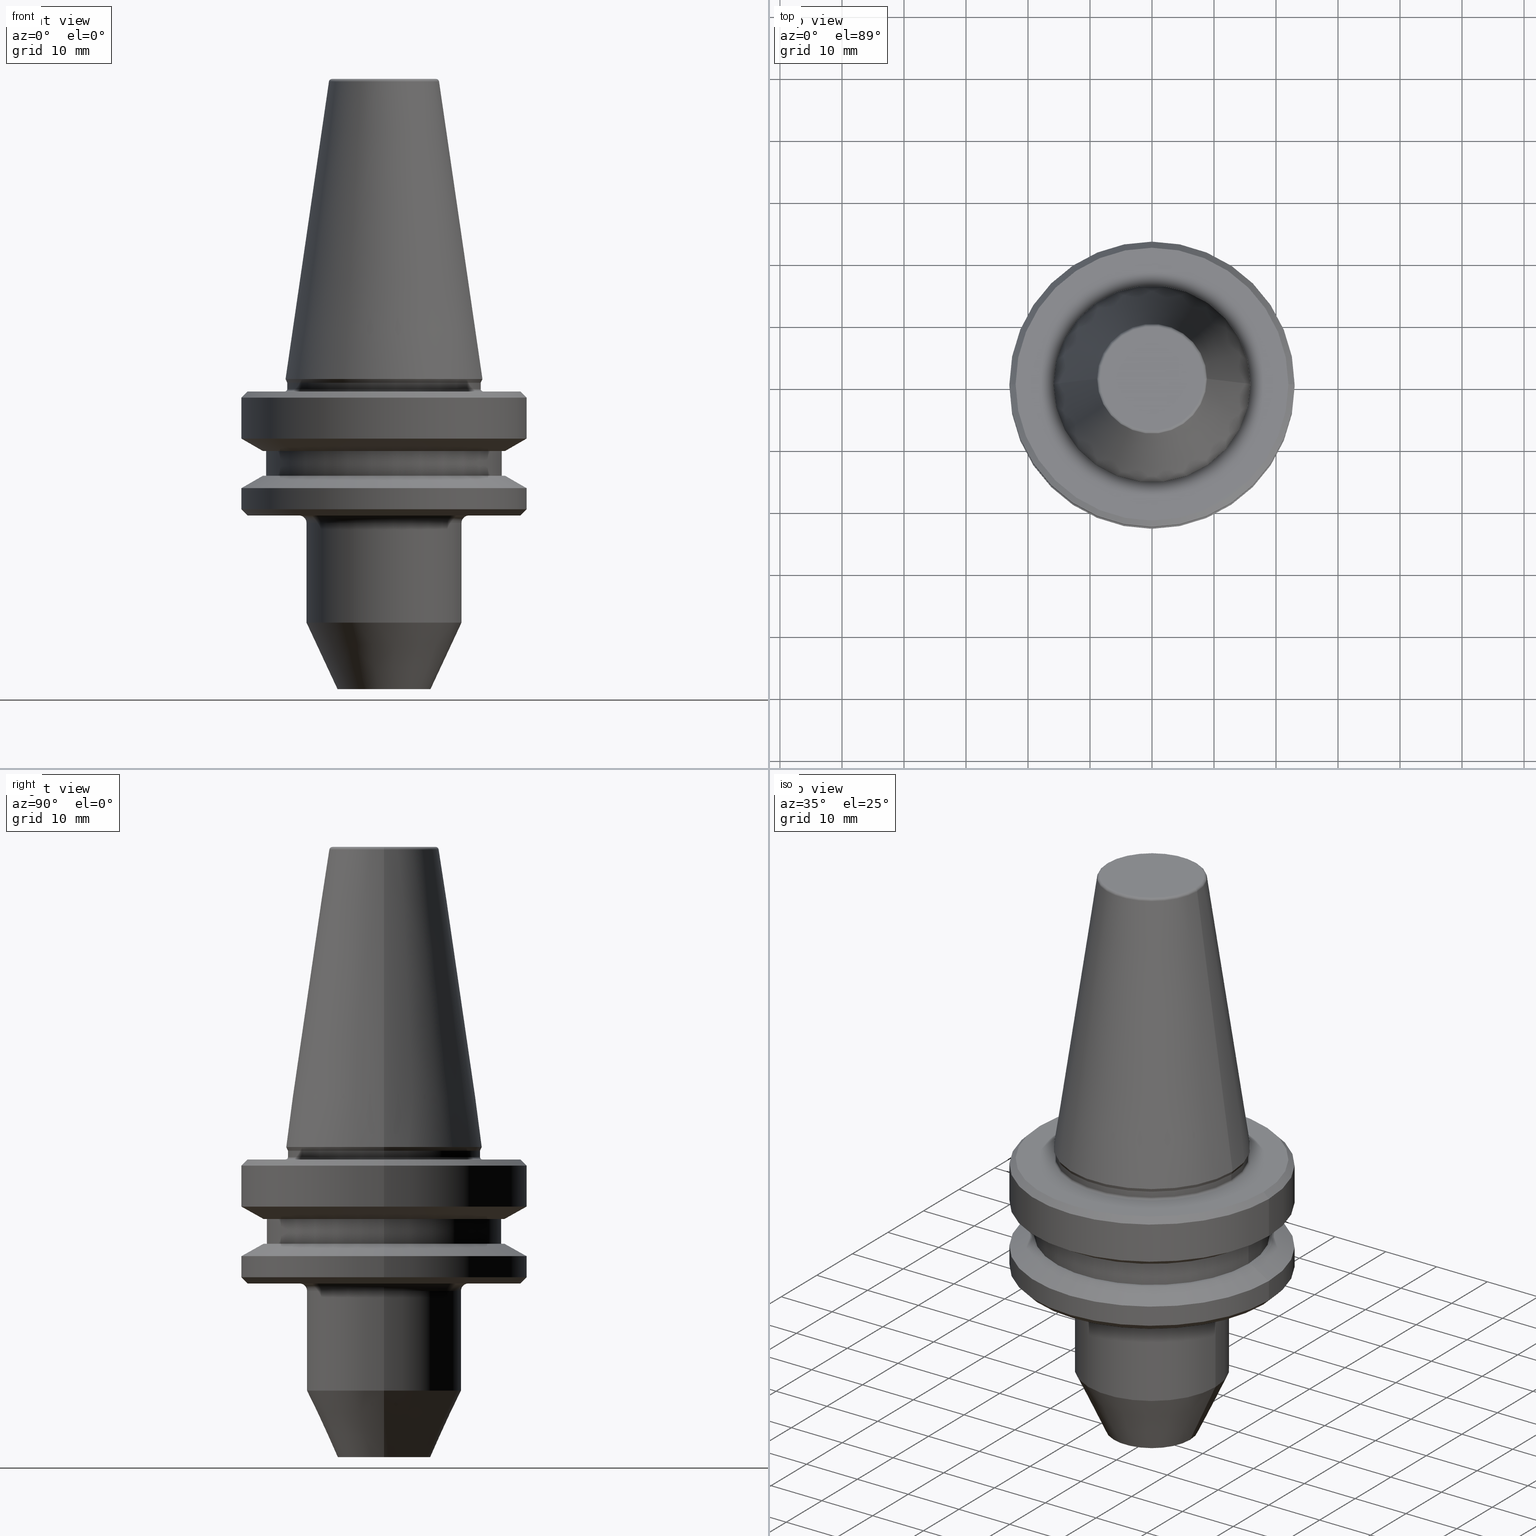
[diagram: canonical four-view strip — front | top / right | iso, engineering-drawing reading convention]
A machine part, canonical four-view strip (front | top / right | iso — engineering-drawing reading convention). The complete STEP part file that produces these views, byte-faithful:
ISO-10303-21;
HEADER;
FILE_DESCRIPTION (( 'STEP AP203' ),
    '1' );
FILE_NAME ('BT30 WE06 050 AD-6.3G15000 SL.STEP',
    '2019-05-22T05:49:51',
    ( '' ),
    ( '' ),
    'SwSTEP 2.0',
    'SolidWorks 2014',
    '' );
FILE_SCHEMA (( 'CONFIG_CONTROL_DESIGN' ));
ENDSEC;

DATA;
#1 = ORIENTED_EDGE ( 'NONE', *, *, #244, .F. ) ;
#2 = CIRCLE ( 'NONE', #490, 16.00000000000034800 ) ;
#3 = AXIS2_PLACEMENT_3D ( 'NONE', #28, #77, #452 ) ;
#4 = DIRECTION ( 'NONE',  ( -0.0000000000000000000, -0.0000000000000000000, 1.000000000000000000 ) ) ;
#5 = CARTESIAN_POINT ( 'NONE',  ( 19.53610161513741200, 2.604585034559224100E-015, -15.59999999999983600 ) ) ;
#6 = LINE ( 'NONE', #127, #636 ) ;
#7 = EDGE_CURVE ( 'NONE', #859, #751, #630, .T. ) ;
#8 = DIRECTION ( 'NONE',  ( 0.0000000000000000000, 0.0000000000000000000, -1.000000000000000000 ) ) ;
#9 = ORIENTED_EDGE ( 'NONE', *, *, #988, .T. ) ;
#10 = PLANE ( 'NONE',  #164 ) ;
#11 = DIRECTION ( 'NONE',  ( -1.000000000000000000, 0.0000000000000000000, -0.0000000000000000000 ) ) ;
#12 = ORIENTED_EDGE ( 'NONE', *, *, #303, .F. ) ;
#13 = EDGE_LOOP ( 'NONE', ( #705, #447, #915, #39 ) ) ;
#14 = DIRECTION ( 'NONE',  ( 1.224646799147353200E-016, 1.000000000000000000, 0.0000000000000000000 ) ) ;
#15 = AXIS2_PLACEMENT_3D ( 'NONE', #538, #239, #308 ) ;
#16 = LOCAL_TIME ( 11, 19, 51.00000000000000000, #220 ) ;
#17 = CARTESIAN_POINT ( 'NONE',  ( -22.99999999999990800, 2.816687638038900900E-015, 67.86440920015635900 ) ) ;
#18 = DIRECTION ( 'NONE',  ( 1.000000000000000000, 0.0000000000000000000, 0.0000000000000000000 ) ) ;
#19 = CIRCLE ( 'NONE', #224, 19.53610161513930200 ) ;
#20 = AXIS2_PLACEMENT_3D ( 'NONE', #245, #659, #286 ) ;
#21 = DIRECTION ( 'NONE',  ( -0.0000000000000000000, -0.0000000000000000000, 1.000000000000000000 ) ) ;
#22 = CARTESIAN_POINT ( 'NONE',  ( 0.0000000000000000000, 0.0000000000000000000, -2.000000000000001800 ) ) ;
#23 = CARTESIAN_POINT ( 'NONE',  ( 0.0000000000000000000, 0.0000000000000000000, 67.86440920015635900 ) ) ;
#24 = CIRCLE ( 'NONE', #279, 13.70000000000000100 ) ;
#25 = ORIENTED_EDGE ( 'NONE', *, *, #667, .T. ) ;
#26 = DIRECTION ( 'NONE',  ( 1.000000000000000000, 0.0000000000000000000, 0.0000000000000000000 ) ) ;
#27 = VECTOR ( 'NONE', #485, 1000.000000000000000 ) ;
#28 = CARTESIAN_POINT ( 'NONE',  ( -8.384228427309349000, 1.026771850682464100E-015, 47.89999999999960800 ) ) ;
#29 = DIRECTION ( 'NONE',  ( 1.000000000000000000, 0.0000000000000000000, 0.0000000000000000000 ) ) ;
#30 = CIRCLE ( 'NONE', #151, 19.00000000000012800 ) ;
#31 = ORIENTED_EDGE ( 'NONE', *, *, #564, .F. ) ;
#32 = AXIS2_PLACEMENT_3D ( 'NONE', #122, #679, #368 ) ;
#33 = APPROVAL_STATUS ( 'not_yet_approved' ) ;
#34 = FACE_BOUND ( 'NONE', #806, .T. ) ;
#35 = CARTESIAN_POINT ( 'NONE',  ( 0.0000000000000000000, 0.0000000000000000000, 67.86440920015635900 ) ) ;
#36 = EDGE_LOOP ( 'NONE', ( #554, #609, #506, #434 ) ) ;
#37 = ORIENTED_EDGE ( 'NONE', *, *, #1000, .T. ) ;
#38 = ORIENTED_EDGE ( 'NONE', *, *, #89, .F. ) ;
#39 = ORIENTED_EDGE ( 'NONE', *, *, #934, .F. ) ;
#40 = ADVANCED_FACE ( 'NONE', ( #424, #843 ), #930, .F. ) ;
#41 = CALENDAR_DATE ( 2019, 22, 5 ) ;
#42 = EDGE_CURVE ( 'NONE', #648, #859, #604, .T. ) ;
#43 = DIRECTION ( 'NONE',  ( 1.000000000000000000, 0.0000000000000000000, 0.0000000000000000000 ) ) ;
#44 = CARTESIAN_POINT ( 'NONE',  ( -19.53610161513741200, 0.0000000000000000000, -15.59999999999983600 ) ) ;
#45 = ORIENTED_EDGE ( 'NONE', *, *, #772, .F. ) ;
#46 = ADVANCED_FACE ( 'NONE', ( #229 ), #395, .F. ) ;
#47 = PRODUCT_DEFINITION ( 'UNKNOWN', '', #292, #103 ) ;
#48 = FACE_OUTER_BOUND ( 'NONE', #465, .T. ) ;
#49 = ORIENTED_EDGE ( 'NONE', *, *, #920, .F. ) ;
#50 = ADVANCED_FACE ( 'NONE', ( #817 ), #978, .T. ) ;
#51 = ORIENTED_EDGE ( 'NONE', *, *, #847, .F. ) ;
#52 = ORIENTED_EDGE ( 'NONE', *, *, #294, .F. ) ;
#53 = AXIS2_PLACEMENT_3D ( 'NONE', #854, #770, #378 ) ;
#54 = DIRECTION ( 'NONE',  ( -0.0000000000000000000, -0.0000000000000000000, 1.000000000000000000 ) ) ;
#55 = VECTOR ( 'NONE', #114, 1000.000000000000000 ) ;
#56 = DIRECTION ( 'NONE',  ( 1.000000000000000000, 0.0000000000000000000, 0.0000000000000000000 ) ) ;
#57 = EDGE_CURVE ( 'NONE', #809, #441, #373, .T. ) ;
#58 = MANIFOLD_SOLID_BREP ( 'Revolve1', #68 ) ;
#59 = VECTOR ( 'NONE', #317, 1000.000000000000000 ) ;
#60 = CARTESIAN_POINT ( 'NONE',  ( 13.70000000000000100, 0.0000000000000000000, -21.99999999999957400 ) ) ;
#61 = VERTEX_POINT ( 'NONE', #215 ) ;
#62 = ORIENTED_EDGE ( 'NONE', *, *, #501, .F. ) ;
#63 = CARTESIAN_POINT ( 'NONE',  ( 0.0000000000000000000, 0.0000000000000000000, -11.59999999999938900 ) ) ;
#64 = PERSON_AND_ORGANIZATION ( #880, #350 ) ;
#65 = CARTESIAN_POINT ( 'NONE',  ( 0.0000000000000000000, 0.0000000000000000000, -11.59999999999938900 ) ) ;
#66 = CARTESIAN_POINT ( 'NONE',  ( 22.99999999999990800, 0.0000000000000000000, 67.86440920015635900 ) ) ;
#67 = DIRECTION ( 'NONE',  ( -0.0000000000000000000, -0.0000000000000000000, 1.000000000000000000 ) ) ;
#68 = CLOSED_SHELL ( 'NONE', ( #651, #963, #409, #566, #117, #269, #969, #895, #724, #489, #496, #416, #887, #50, #657, #46, #40, #727, #340, #647, #975, #813, #810, #193, #344, #198, #336, #274, #732, #570, #420, #204, #891, #575, #265, #124 ) ) ;
#69 = DIRECTION ( 'NONE',  ( -0.0000000000000000000, -0.0000000000000000000, 1.000000000000000000 ) ) ;
#70 = VECTOR ( 'NONE', #449, 1000.000000000000000 ) ;
#71 = AXIS2_PLACEMENT_3D ( 'NONE', #681, #412, #341 ) ;
#72 = CARTESIAN_POINT ( 'NONE',  ( 0.0000000000000000000, 0.0000000000000000000, -20.99999999999990800 ) ) ;
#73 = VERTEX_POINT ( 'NONE', #218 ) ;
#74 = ORIENTED_EDGE ( 'NONE', *, *, #261, .F. ) ;
#75 = DIRECTION ( 'NONE',  ( -0.0000000000000000000, -0.0000000000000000000, 1.000000000000000000 ) ) ;
#76 = EDGE_CURVE ( 'NONE', #383, #367, #178, .T. ) ;
#77 = DIRECTION ( 'NONE',  ( 1.224646799147353200E-016, 1.000000000000000000, 0.0000000000000000000 ) ) ;
#78 = CYLINDRICAL_SURFACE ( 'NONE', #789, 22.99999999999990800 ) ;
#79 = CARTESIAN_POINT ( 'NONE',  ( -22.99999999999990800, 2.816687638038901700E-015, -17.59988266494572100 ) ) ;
#80 = CARTESIAN_POINT ( 'NONE',  ( 0.0000000000000000000, 0.0000000000000000000, -23.19999999999956900 ) ) ;
#81 = CIRCLE ( 'NONE', #309, 22.99999999999990800 ) ;
#82 = AXIS2_PLACEMENT_3D ( 'NONE', #911, #673, #994 ) ;
#83 = DIRECTION ( 'NONE',  ( 1.000000000000000000, 0.0000000000000000000, 0.0000000000000000000 ) ) ;
#84 = COORDINATED_UNIVERSAL_TIME_OFFSET ( 5, 30, .AHEAD. ) ;
#85 = DIRECTION ( 'NONE',  ( -0.0000000000000000000, -0.0000000000000000000, 1.000000000000000000 ) ) ;
#86 = CARTESIAN_POINT ( 'NONE',  ( 8.878994820583409700, 1.515745026156880400E-015, 47.97215411344146900 ) ) ;
#87 = CARTESIAN_POINT ( 'NONE',  ( -19.00000000000012800, 2.326828918379986700E-015, -11.59999999999938900 ) ) ;
#88 = CONICAL_SURFACE ( 'NONE', #607, 15.87499999999997500, 0.4363323129989819000 ) ;
#89 = EDGE_CURVE ( 'NONE', #130, #728, #2, .T. ) ;
#90 = LINE ( 'NONE', #259, #514 ) ;
#91 = CARTESIAN_POINT ( 'NONE',  ( 22.99999999999990800, 0.0000000000000000000, -9.600117335054614300 ) ) ;
#92 = EDGE_CURVE ( 'NONE', #160, #751, #794, .T. ) ;
#93 = TOROIDAL_SURFACE ( 'NONE', #32, 13.70000000000000100, 1.199999999999998800 ) ;
#94 = DIRECTION ( 'NONE',  ( -0.0000000000000000000, -0.0000000000000000000, 1.000000000000000000 ) ) ;
#95 = ORIENTED_EDGE ( 'NONE', *, *, #110, .F. ) ;
#96 = ORIENTED_EDGE ( 'NONE', *, *, #98, .T. ) ;
#97 = APPROVAL ( #876, 'UNSPECIFIED' ) ;
#98 = EDGE_CURVE ( 'NONE', #338, #809, #205, .T. ) ;
#99 = FACE_OUTER_BOUND ( 'NONE', #618, .T. ) ;
#100 = DIRECTION ( 'NONE',  ( 0.7071067811865081600, 8.659560562354452100E-017, -0.7071067811865867600 ) ) ;
#101 = DIRECTION ( 'NONE',  ( -0.0000000000000000000, -0.0000000000000000000, 1.000000000000000000 ) ) ;
#102 = AXIS2_PLACEMENT_3D ( 'NONE', #470, #54, #330 ) ;
#103 = DESIGN_CONTEXT ( 'detailed design', #798, 'design' ) ;
#104 = CIRCLE ( 'NONE', #267, 15.87499999999997500 ) ;
#105 = UNCERTAINTY_MEASURE_WITH_UNIT (LENGTH_MEASURE( 1.000000000000000100E-005 ), #324, 'distance_accuracy_value', 'NONE');
#106 = EDGE_CURVE ( 'NONE', #471, #314, #766, .T. ) ;
#107 = DIRECTION ( 'NONE',  ( 0.0000000000000000000, 0.0000000000000000000, 1.000000000000000000 ) ) ;
#108 = CARTESIAN_POINT ( 'NONE',  ( -12.50000000000000000, 1.530808498934191500E-015, -39.27746539745214000 ) ) ;
#109 = EDGE_LOOP ( 'NONE', ( #361, #765, #748, #853 ) ) ;
#110 = EDGE_CURVE ( 'NONE', #716, #251, #347, .T. ) ;
#111 = CARTESIAN_POINT ( 'NONE',  ( 0.0000000000000000000, 0.0000000000000000000, -2.000000000000001800 ) ) ;
#112 = LOCAL_TIME ( 11, 19, 51.00000000000000000, #301 ) ;
#113 = PERSON_AND_ORGANIZATION_ROLE ( 'creator' ) ;
#114 = DIRECTION ( 'NONE',  ( -0.0000000000000000000, -0.0000000000000000000, 1.000000000000000000 ) ) ;
#115 = VECTOR ( 'NONE', #183, 1000.000000000000000 ) ;
#116 = AXIS2_PLACEMENT_3D ( 'NONE', #305, #377, #83 ) ;
#117 = ADVANCED_FACE ( 'NONE', ( #154 ), #622, .T. ) ;
#118 = LINE ( 'NONE', #829, #70 ) ;
#119 = ORIENTED_EDGE ( 'NONE', *, *, #42, .T. ) ;
#120 = EDGE_LOOP ( 'NONE', ( #695, #38 ) ) ;
#121 = CARTESIAN_POINT ( 'NONE',  ( 0.0000000000000000000, 0.0000000000000000000, -23.19999999999956900 ) ) ;
#122 = CARTESIAN_POINT ( 'NONE',  ( 0.0000000000000000000, 0.0000000000000000000, -23.19999999999957700 ) ) ;
#123 = AXIS2_PLACEMENT_3D ( 'NONE', #879, #588, #958 ) ;
#124 = ADVANCED_FACE ( 'NONE', ( #530 ), #417, .T. ) ;
#125 = FACE_BOUND ( 'NONE', #120, .T. ) ;
#126 = ORIENTED_EDGE ( 'NONE', *, *, #613, .T. ) ;
#127 = CARTESIAN_POINT ( 'NONE',  ( 21.99999999999990800, 2.694222958124165800E-015, -2.000000000000001800 ) ) ;
#128 = VECTOR ( 'NONE', #300, 1000.000000000000000 ) ;
#129 = ORIENTED_EDGE ( 'NONE', *, *, #244, .T. ) ;
#130 = VERTEX_POINT ( 'NONE', #644 ) ;
#131 = FACE_OUTER_BOUND ( 'NONE', #13, .T. ) ;
#132 = DIRECTION ( 'NONE',  ( 0.4226182617406973900, 0.0000000000000000000, 0.9063077870366509400 ) ) ;
#133 = CALENDAR_DATE ( 2019, 22, 5 ) ;
#134 = DIRECTION ( 'NONE',  ( -0.0000000000000000000, -0.0000000000000000000, 1.000000000000000000 ) ) ;
#135 = AXIS2_PLACEMENT_3D ( 'NONE', #287, #593, #143 ) ;
#136 = DIRECTION ( 'NONE',  ( 1.000000000000000000, 0.0000000000000000000, 0.0000000000000000000 ) ) ;
#137 = VECTOR ( 'NONE', #556, 1000.000000000000000 ) ;
#138 = EDGE_LOOP ( 'NONE', ( #235, #177 ) ) ;
#139 = EDGE_CURVE ( 'NONE', #914, #73, #325, .T. ) ;
#140 = DIRECTION ( 'NONE',  ( -0.0000000000000000000, -0.0000000000000000000, 1.000000000000000000 ) ) ;
#141 = ORIENTED_EDGE ( 'NONE', *, *, #881, .F. ) ;
#142 = ORIENTED_EDGE ( 'NONE', *, *, #633, .F. ) ;
#143 = DIRECTION ( 'NONE',  ( 1.000000000000000000, 0.0000000000000000000, 0.0000000000000000000 ) ) ;
#144 = ORIENTED_EDGE ( 'NONE', *, *, #703, .T. ) ;
#145 = ORIENTED_EDGE ( 'NONE', *, *, #837, .T. ) ;
#146 = CC_DESIGN_APPROVAL ( #97, ( #47 ) ) ;
#147 = CIRCLE ( 'NONE', #473, 0.5000000000000837100 ) ;
#148 = DIRECTION ( 'NONE',  ( 1.000000000000000000, 0.0000000000000000000, 0.0000000000000000000 ) ) ;
#149 = EDGE_LOOP ( 'NONE', ( #776, #228, #232, #493 ) ) ;
#150 = CIRCLE ( 'NONE', #856, 12.50000000000000200 ) ;
#151 = AXIS2_PLACEMENT_3D ( 'NONE', #943, #597, #43 ) ;
#152 = CARTESIAN_POINT ( 'NONE',  ( 0.0000000000000000000, 0.0000000000000000000, -17.59988266494572100 ) ) ;
#153 = ORIENTED_EDGE ( 'NONE', *, *, #703, .F. ) ;
#154 = FACE_OUTER_BOUND ( 'NONE', #894, .T. ) ;
#155 = DIRECTION ( 'NONE',  ( 1.000000000000000000, 0.0000000000000000000, 0.0000000000000000000 ) ) ;
#156 = PERSON_AND_ORGANIZATION ( #880, #350 ) ;
#157 = EDGE_CURVE ( 'NONE', #194, #572, #739, .T. ) ;
#158 = LINE ( 'NONE', #17, #137 ) ;
#159 = CARTESIAN_POINT ( 'NONE',  ( -16.00000000000056800, 1.959434878635834900E-015, -1.599999999999823800 ) ) ;
#160 = VERTEX_POINT ( 'NONE', #418 ) ;
#161 = DIRECTION ( 'NONE',  ( -1.000000000000000000, 0.0000000000000000000, -0.0000000000000000000 ) ) ;
#162 = DIRECTION ( 'NONE',  ( 1.000000000000000000, 0.0000000000000000000, 0.0000000000000000000 ) ) ;
#163 = ORIENTED_EDGE ( 'NONE', *, *, #883, .T. ) ;
#164 = AXIS2_PLACEMENT_3D ( 'NONE', #610, #615, #161 ) ;
#165 = ORIENTED_EDGE ( 'NONE', *, *, #195, .F. ) ;
#166 = ORIENTED_EDGE ( 'NONE', *, *, #883, .F. ) ;
#167 = DIRECTION ( 'NONE',  ( 1.000000000000000000, 0.0000000000000000000, 0.0000000000000000000 ) ) ;
#168 = CARTESIAN_POINT ( 'NONE',  ( 0.0000000000000000000, 0.0000000000000000000, -9.600117335054614300 ) ) ;
#169 = CYLINDRICAL_SURFACE ( 'NONE', #422, 15.60000000000005800 ) ;
#170 = AXIS2_PLACEMENT_3D ( 'NONE', #548, #715, #612 ) ;
#171 = CARTESIAN_POINT ( 'NONE',  ( -15.87499999999997500, 1.944126793646420500E-015, 0.0000000000000000000 ) ) ;
#172 = DIRECTION ( 'NONE',  ( -0.0000000000000000000, -0.0000000000000000000, 1.000000000000000000 ) ) ;
#173 = ORIENTED_EDGE ( 'NONE', *, *, #508, .T. ) ;
#174 = DIRECTION ( 'NONE',  ( -0.8660254037844393700, 1.060575238724907800E-016, 0.4999999999999985000 ) ) ;
#175 = LINE ( 'NONE', #761, #345 ) ;
#176 = CARTESIAN_POINT ( 'NONE',  ( 16.00000000000045800, 0.0000000000000000000, -2.000000000000085300 ) ) ;
#177 = ORIENTED_EDGE ( 'NONE', *, *, #665, .T. ) ;
#178 = CIRCLE ( 'NONE', #440, 21.99999999999990800 ) ;
#179 = ORIENTED_EDGE ( 'NONE', *, *, #954, .F. ) ;
#180 = DIRECTION ( 'NONE',  ( -0.0000000000000000000, -0.0000000000000000000, 1.000000000000000000 ) ) ;
#181 = APPLICATION_PROTOCOL_DEFINITION ( 'international standard', 'config_control_design', 1994, #478 ) ;
#182 = CYLINDRICAL_SURFACE ( 'NONE', #455, 19.00000000000012800 ) ;
#183 = DIRECTION ( 'NONE',  ( -0.4226182617406973900, 5.175581015019633500E-017, 0.9063077870366509400 ) ) ;
#184 = DIRECTION ( 'NONE',  ( -0.0000000000000000000, -0.0000000000000000000, 1.000000000000000000 ) ) ;
#185 = CARTESIAN_POINT ( 'NONE',  ( 21.99999999999990800, 2.755455298081533300E-015, -2.000000000000001800 ) ) ;
#186 = AXIS2_PLACEMENT_3D ( 'NONE', #756, #520, #840 ) ;
#187 = EDGE_LOOP ( 'NONE', ( #1, #45 ) ) ;
#188 = SECURITY_CLASSIFICATION_LEVEL ( 'unclassified' ) ;
#189 = EDGE_LOOP ( 'NONE', ( #577, #488, #358, #49 ) ) ;
#190 = ORIENTED_EDGE ( 'NONE', *, *, #920, .T. ) ;
#191 = CARTESIAN_POINT ( 'NONE',  ( 0.0000000000000000000, 0.0000000000000000000, 47.89999999999960800 ) ) ;
#192 = AXIS2_PLACEMENT_3D ( 'NONE', #628, #94, #926 ) ;
#193 = ADVANCED_FACE ( 'NONE', ( #131 ), #197, .T. ) ;
#194 = VERTEX_POINT ( 'NONE', #755 ) ;
#195 = EDGE_CURVE ( 'NONE', #160, #746, #223, .T. ) ;
#196 = CARTESIAN_POINT ( 'NONE',  ( 12.50000000000000000, 0.0000000000000000000, -39.27746539745214000 ) ) ;
#197 = CONICAL_SURFACE ( 'NONE', #916, 22.99999999999990800, 1.047197551196599400 ) ;
#198 = ADVANCED_FACE ( 'NONE', ( #811 ), #364, .T. ) ;
#199 = DIRECTION ( 'NONE',  ( 1.000000000000000000, 0.0000000000000000000, 0.0000000000000000000 ) ) ;
#200 = CC_DESIGN_PERSON_AND_ORGANIZATION_ASSIGNMENT ( #507, #955, ( #47 ) ) ;
#201 = CIRCLE ( 'NONE', #747, 8.384228427309237100 ) ;
#202 = VERTEX_POINT ( 'NONE', #600 ) ;
#203 = ORIENTED_EDGE ( 'NONE', *, *, #463, .F. ) ;
#204 = ADVANCED_FACE ( 'NONE', ( #997 ), #390, .T. ) ;
#205 = CIRCLE ( 'NONE', #543, 7.499999999999996400 ) ;
#206 = DIRECTION ( 'NONE',  ( 1.000000000000000000, 0.0000000000000000000, 0.0000000000000000000 ) ) ;
#207 = AXIS2_PLACEMENT_3D ( 'NONE', #519, #682, #668 ) ;
#208 = CIRCLE ( 'NONE', #102, 22.00000000000024200 ) ;
#209 = EDGE_CURVE ( 'NONE', #542, #432, #571, .T. ) ;
#210 = EDGE_LOOP ( 'NONE', ( #410, #731, #641, #142 ) ) ;
#211 = EDGE_CURVE ( 'NONE', #648, #852, #595, .T. ) ;
#212 = CARTESIAN_POINT ( 'NONE',  ( -15.60000000000006200, 1.910449006669878400E-015, -0.5897394031393332600 ) ) ;
#213 = CONICAL_SURFACE ( 'NONE', #415, 12.50000000000000000, 0.4363323129985801100 ) ;
#214 = CARTESIAN_POINT ( 'NONE',  ( 0.0000000000000000000, 0.0000000000000000000, -20.99999999999990800 ) ) ;
#215 = CARTESIAN_POINT ( 'NONE',  ( 19.00000000000012800, 0.0000000000000000000, -15.59999999999983600 ) ) ;
#216 = EDGE_LOOP ( 'NONE', ( #886, #804, #262, #637 ) ) ;
#217 = VERTEX_POINT ( 'NONE', #966 ) ;
#218 = CARTESIAN_POINT ( 'NONE',  ( 22.99999999999990800, 0.0000000000000000000, -3.000000000000113700 ) ) ;
#219 = EDGE_LOOP ( 'NONE', ( #967, #864 ) ) ;
#220 = COORDINATED_UNIVERSAL_TIME_OFFSET ( 5, 30, .AHEAD. ) ;
#221 = DIRECTION ( 'NONE',  ( -0.0000000000000000000, -0.0000000000000000000, 1.000000000000000000 ) ) ;
#222 = AXIS2_PLACEMENT_3D ( 'NONE', #697, #242, #780 ) ;
#223 = CIRCLE ( 'NONE', #971, 22.99999999999990400 ) ;
#224 = AXIS2_PLACEMENT_3D ( 'NONE', #63, #775, #594 ) ;
#225 = CARTESIAN_POINT ( 'NONE',  ( 16.00000000000056800, 0.0000000000000000000, -1.599999999999823800 ) ) ;
#226 = FACE_OUTER_BOUND ( 'NONE', #460, .T. ) ;
#227 = DIRECTION ( 'NONE',  ( -0.0000000000000000000, -0.0000000000000000000, 1.000000000000000000 ) ) ;
#228 = ORIENTED_EDGE ( 'NONE', *, *, #365, .T. ) ;
#229 = FACE_OUTER_BOUND ( 'NONE', #109, .T. ) ;
#230 = DIRECTION ( 'NONE',  ( 1.000000000000000000, 0.0000000000000000000, 0.0000000000000000000 ) ) ;
#231 = FACE_OUTER_BOUND ( 'NONE', #411, .T. ) ;
#232 = ORIENTED_EDGE ( 'NONE', *, *, #501, .T. ) ;
#233 = FACE_OUTER_BOUND ( 'NONE', #925, .T. ) ;
#234 = AXIS2_PLACEMENT_3D ( 'NONE', #443, #998, #397 ) ;
#235 = ORIENTED_EDGE ( 'NONE', *, *, #790, .T. ) ;
#236 = DIRECTION ( 'NONE',  ( -1.000000000000000000, 1.224646799147351000E-016, 0.0000000000000000000 ) ) ;
#237 = ORIENTED_EDGE ( 'NONE', *, *, #261, .T. ) ;
#238 = EDGE_LOOP ( 'NONE', ( #129, #37, #735, #356 ) ) ;
#239 = DIRECTION ( 'NONE',  ( 0.0000000000000000000, 0.0000000000000000000, -1.000000000000000000 ) ) ;
#240 = LOCAL_TIME ( 11, 19, 51.00000000000000000, #437 ) ;
#241 = CARTESIAN_POINT ( 'NONE',  ( -8.384228427309237100, 1.057067554674900100E-015, 48.39999999999977800 ) ) ;
#242 = DIRECTION ( 'NONE',  ( -0.0000000000000000000, -0.0000000000000000000, 1.000000000000000000 ) ) ;
#243 = DIRECTION ( 'NONE',  ( 1.000000000000000000, 0.0000000000000000000, 0.0000000000000000000 ) ) ;
#244 = EDGE_CURVE ( 'NONE', #561, #323, #19, .T. ) ;
#245 = CARTESIAN_POINT ( 'NONE',  ( 0.0000000000000000000, 0.0000000000000000000, -2.000000000000001800 ) ) ;
#246 = DIRECTION ( 'NONE',  ( 1.000000000000000000, 0.0000000000000000000, 0.0000000000000000000 ) ) ;
#247 = DIRECTION ( 'NONE',  ( -0.0000000000000000000, -0.0000000000000000000, 1.000000000000000000 ) ) ;
#248 = FACE_OUTER_BOUND ( 'NONE', #726, .T. ) ;
#249 = ORIENTED_EDGE ( 'NONE', *, *, #283, .T. ) ;
#250 = CC_DESIGN_DATE_AND_TIME_ASSIGNMENT ( #692, #481, ( #47 ) ) ;
#251 = VERTEX_POINT ( 'NONE', #87 ) ;
#252 = CARTESIAN_POINT ( 'NONE',  ( -12.50000000000000000, 1.530808498934191500E-015, -39.27746539745214000 ) ) ;
#253 = CARTESIAN_POINT ( 'NONE',  ( 0.0000000000000000000, 0.0000000000000000000, -9.600117335054614300 ) ) ;
#254 = FACE_OUTER_BOUND ( 'NONE', #946, .T. ) ;
#255 = AXIS2_PLACEMENT_3D ( 'NONE', #871, #757, #162 ) ;
#256 = CARTESIAN_POINT ( 'NONE',  ( 8.384228427309237100, 0.0000000000000000000, 48.39999999999977800 ) ) ;
#257 = PERSON_AND_ORGANIZATION_ROLE ( 'design_owner' ) ;
#258 = LINE ( 'NONE', #862, #639 ) ;
#259 = CARTESIAN_POINT ( 'NONE',  ( -8.878994820583409700, 0.0000000000000000000, 47.97215411344146900 ) ) ;
#260 = CARTESIAN_POINT ( 'NONE',  ( 0.0000000000000000000, 0.0000000000000000000, 67.86440920015635900 ) ) ;
#261 = EDGE_CURVE ( 'NONE', #61, #716, #758, .T. ) ;
#262 = ORIENTED_EDGE ( 'NONE', *, *, #294, .T. ) ;
#263 = DATE_TIME_ROLE ( 'classification_date' ) ;
#264 = APPROVAL_DATE_TIME ( #462, #343 ) ;
#265 = ADVANCED_FACE ( 'NONE', ( #783 ), #523, .T. ) ;
#266 = DIRECTION ( 'NONE',  ( 1.000000000000000000, 0.0000000000000000000, 0.0000000000000000000 ) ) ;
#267 = AXIS2_PLACEMENT_3D ( 'NONE', #937, #466, #18 ) ;
#268 = CARTESIAN_POINT ( 'NONE',  ( -19.53610161513930200, 2.604585034559339600E-015, -11.59999999999938900 ) ) ;
#269 = ADVANCED_FACE ( 'NONE', ( #972 ), #169, .T. ) ;
#270 = CIRCLE ( 'NONE', #135, 8.878994820583409700 ) ;
#271 = ORIENTED_EDGE ( 'NONE', *, *, #57, .F. ) ;
#272 = ORIENTED_EDGE ( 'NONE', *, *, #867, .F. ) ;
#273 = AXIS2_PLACEMENT_3D ( 'NONE', #675, #101, #979 ) ;
#274 = ADVANCED_FACE ( 'NONE', ( #733 ), #945, .F. ) ;
#275 = CIRCLE ( 'NONE', #574, 19.00000000000012800 ) ;
#276 = CARTESIAN_POINT ( 'NONE',  ( 0.0000000000000000000, 0.0000000000000000000, -20.99999999999990800 ) ) ;
#277 = FACE_OUTER_BOUND ( 'NONE', #959, .T. ) ;
#278 = CARTESIAN_POINT ( 'NONE',  ( 0.0000000000000000000, 0.0000000000000000000, -20.99999999999990800 ) ) ;
#279 = AXIS2_PLACEMENT_3D ( 'NONE', #582, #134, #663 ) ;
#280 = DIRECTION ( 'NONE',  ( -0.0000000000000000000, -0.0000000000000000000, 1.000000000000000000 ) ) ;
#281 = APPROVAL_PERSON_ORGANIZATION ( #483, #343, #560 ) ;
#282 = AXIS2_PLACEMENT_3D ( 'NONE', #276, #935, #56 ) ;
#283 = EDGE_CURVE ( 'NONE', #367, #383, #342, .T. ) ;
#284 = CARTESIAN_POINT ( 'NONE',  ( -12.50000000000000400, 1.604287306883033200E-015, -23.19999999999956900 ) ) ;
#285 = CIRCLE ( 'NONE', #927, 0.4000000000003445200 ) ;
#286 = DIRECTION ( 'NONE',  ( -1.000000000000000000, 0.0000000000000000000, 0.0000000000000000000 ) ) ;
#287 = CARTESIAN_POINT ( 'NONE',  ( 0.0000000000000000000, 0.0000000000000000000, 47.97215411344146900 ) ) ;
#288 = EDGE_LOOP ( 'NONE', ( #991, #537, #586, #62 ) ) ;
#289 = ORIENTED_EDGE ( 'NONE', *, *, #952, .F. ) ;
#290 = DIRECTION ( 'NONE',  ( -0.0000000000000000000, -0.0000000000000000000, 1.000000000000000000 ) ) ;
#291 = DIRECTION ( 'NONE',  ( 0.0000000000000000000, 0.0000000000000000000, -1.000000000000000000 ) ) ;
#292 = PRODUCT_DEFINITION_FORMATION_WITH_SPECIFIED_SOURCE ( 'ANY', '', #801, .NOT_KNOWN. ) ;
#293 = FACE_OUTER_BOUND ( 'NONE', #977, .T. ) ;
#294 = EDGE_CURVE ( 'NONE', #892, #314, #147, .T. ) ;
#295 = ORIENTED_EDGE ( 'NONE', *, *, #988, .F. ) ;
#296 = AXIS2_PLACEMENT_3D ( 'NONE', #253, #792, #784 ) ;
#297 = CARTESIAN_POINT ( 'NONE',  ( 22.99999999999990800, 0.0000000000000000000, -9.600117335054614300 ) ) ;
#298 = VECTOR ( 'NONE', #774, 1000.000000000000000 ) ;
#299 = CARTESIAN_POINT ( 'NONE',  ( -13.70000000000000100, 1.677766114831874000E-015, -21.99999999999957400 ) ) ;
#300 = DIRECTION ( 'NONE',  ( 0.7071067811865500200, 0.0000000000000000000, 0.7071067811865450200 ) ) ;
#301 = COORDINATED_UNIVERSAL_TIME_OFFSET ( 5, 30, .AHEAD. ) ;
#302 = PLANE ( 'NONE',  #767 ) ;
#303 = EDGE_CURVE ( 'NONE', #572, #830, #321, .T. ) ;
#304 = CARTESIAN_POINT ( 'NONE',  ( 0.0000000000000000000, 0.0000000000000000000, -1.599999999999823800 ) ) ;
#305 = CARTESIAN_POINT ( 'NONE',  ( 0.0000000000000000000, 0.0000000000000000000, 67.86440920015635900 ) ) ;
#306 = FACE_OUTER_BOUND ( 'NONE', #210, .T. ) ;
#307 = EDGE_LOOP ( 'NONE', ( #965, #711, #95, #74 ) ) ;
#308 = DIRECTION ( 'NONE',  ( -1.000000000000000000, 0.0000000000000000000, 0.0000000000000000000 ) ) ;
#309 = AXIS2_PLACEMENT_3D ( 'NONE', #168, #701, #246 ) ;
#310 = CARTESIAN_POINT ( 'NONE',  ( 0.0000000000000000000, 0.0000000000000000000, -39.27746539745214000 ) ) ;
#311 = FACE_OUTER_BOUND ( 'NONE', #993, .T. ) ;
#312 = CARTESIAN_POINT ( 'NONE',  ( -21.99999999999990800, 0.0000000000000000000, -2.000000000000001800 ) ) ;
#313 = ORIENTED_EDGE ( 'NONE', *, *, #907, .F. ) ;
#314 = VERTEX_POINT ( 'NONE', #256 ) ;
#315 = DIRECTION ( 'NONE',  ( 0.0000000000000000000, -1.000000000000000000, 0.0000000000000000000 ) ) ;
#316 = ORIENTED_EDGE ( 'NONE', *, *, #42, .F. ) ;
#317 = DIRECTION ( 'NONE',  ( 0.1443082268835123000, 1.767266081435233600E-017, -0.9895327865481450300 ) ) ;
#318 = DIRECTION ( 'NONE',  ( 1.000000000000000000, 0.0000000000000000000, 0.0000000000000000000 ) ) ;
#319 = AXIS2_PLACEMENT_3D ( 'NONE', #304, #247, #167 ) ;
#320 = CARTESIAN_POINT ( 'NONE',  ( 22.99999999999990800, 0.0000000000000000000, 67.86440920015635900 ) ) ;
#321 = LINE ( 'NONE', #442, #707 ) ;
#322 = LINE ( 'NONE', #605, #128 ) ;
#323 = VERTEX_POINT ( 'NONE', #268 ) ;
#324 =( LENGTH_UNIT ( ) NAMED_UNIT ( * ) SI_UNIT ( .MILLI., .METRE. ) );
#325 = CIRCLE ( 'NONE', #812, 22.99999999999990800 ) ;
#326 = LOCAL_TIME ( 11, 19, 51.00000000000000000, #531 ) ;
#327 = APPLICATION_PROTOCOL_DEFINITION ( 'international standard', 'config_control_design', 1994, #798 ) ;
#328 = DIRECTION ( 'NONE',  ( -0.0000000000000000000, -0.0000000000000000000, 1.000000000000000000 ) ) ;
#329 = CARTESIAN_POINT ( 'NONE',  ( 0.0000000000000000000, 0.0000000000000000000, 48.39999999999977800 ) ) ;
#330 = DIRECTION ( 'NONE',  ( 1.000000000000000000, 0.0000000000000000000, 0.0000000000000000000 ) ) ;
#331 = LINE ( 'NONE', #108, #115 ) ;
#332 = AXIS2_PLACEMENT_3D ( 'NONE', #72, #828, #918 ) ;
#333 = APPROVAL_ROLE ( '' ) ;
#334 = ORIENTED_EDGE ( 'NONE', *, *, #211, .F. ) ;
#335 = CARTESIAN_POINT ( 'NONE',  ( 0.0000000000000000000, 0.0000000000000000000, 67.86440920015635900 ) ) ;
#336 = ADVANCED_FACE ( 'NONE', ( #125, #293 ), #374, .F. ) ;
#337 = AXIS2_PLACEMENT_3D ( 'NONE', #917, #522, #835 ) ;
#338 = VERTEX_POINT ( 'NONE', #992 ) ;
#339 = ORIENTED_EDGE ( 'NONE', *, *, #995, .T. ) ;
#340 = ADVANCED_FACE ( 'NONE', ( #498 ), #475, .T. ) ;
#341 = DIRECTION ( 'NONE',  ( 0.0000000000000000000, 0.0000000000000000000, -1.000000000000000000 ) ) ;
#342 = CIRCLE ( 'NONE', #366, 21.99999999999990800 ) ;
#343 = APPROVAL ( #33, 'UNSPECIFIED' ) ;
#344 = ADVANCED_FACE ( 'NONE', ( #921 ), #78, .T. ) ;
#345 = VECTOR ( 'NONE', #431, 1000.000000000000000 ) ;
#346 = ORIENTED_EDGE ( 'NONE', *, *, #92, .T. ) ;
#347 = CIRCLE ( 'NONE', #649, 19.00000000000012800 ) ;
#348 = CARTESIAN_POINT ( 'NONE',  ( 0.0000000000000000000, 0.0000000000000000000, -9.600117335054614300 ) ) ;
#349 = AXIS2_PLACEMENT_3D ( 'NONE', #764, #825, #685 ) ;
#350 = ORGANIZATION ( 'UNSPECIFIED', 'UNSPECIFIED', '' ) ;
#351 = CIRCLE ( 'NONE', #398, 12.50000000000000200 ) ;
#352 = EDGE_CURVE ( 'NONE', #939, #61, #275, .T. ) ;
#353 = DIRECTION ( 'NONE',  ( -0.0000000000000000000, -0.0000000000000000000, 1.000000000000000000 ) ) ;
#354 = ORIENTED_EDGE ( 'NONE', *, *, #723, .F. ) ;
#355 = CARTESIAN_POINT ( 'NONE',  ( -13.70000000000000100, 1.677766114831874000E-015, -23.19999999999957700 ) ) ;
#356 = ORIENTED_EDGE ( 'NONE', *, *, #845, .F. ) ;
#357 = ORIENTED_EDGE ( 'NONE', *, *, #352, .F. ) ;
#358 = ORIENTED_EDGE ( 'NONE', *, *, #954, .T. ) ;
#359 = CARTESIAN_POINT ( 'NONE',  ( 19.00000000000012800, 0.0000000000000000000, -11.59999999999938900 ) ) ;
#360 = AXIS2_PLACEMENT_3D ( 'NONE', #626, #172, #706 ) ;
#361 = ORIENTED_EDGE ( 'NONE', *, *, #365, .F. ) ;
#362 = DIRECTION ( 'NONE',  ( -0.0000000000000000000, -0.0000000000000000000, 1.000000000000000000 ) ) ;
#363 = CARTESIAN_POINT ( 'NONE',  ( 0.0000000000000000000, 0.0000000000000000000, 67.86440920015635900 ) ) ;
#364 = CONICAL_SURFACE ( 'NONE', #20, 21.99999999999990800, 0.7853981633973927700 ) ;
#365 = EDGE_CURVE ( 'NONE', #777, #477, #684, .T. ) ;
#366 = AXIS2_PLACEMENT_3D ( 'NONE', #111, #370, #266 ) ;
#367 = VERTEX_POINT ( 'NONE', #312 ) ;
#368 = DIRECTION ( 'NONE',  ( 1.000000000000000000, 0.0000000000000000000, 0.0000000000000000000 ) ) ;
#369 = EDGE_CURVE ( 'NONE', #830, #738, #896, .T. ) ;
#370 = DIRECTION ( 'NONE',  ( -0.0000000000000000000, -0.0000000000000000000, 1.000000000000000000 ) ) ;
#371 = FACE_OUTER_BOUND ( 'NONE', #807, .T. ) ;
#372 = ORIENTED_EDGE ( 'NONE', *, *, #106, .T. ) ;
#373 = LINE ( 'NONE', #196, #578 ) ;
#374 = PLANE ( 'NONE',  #632 ) ;
#375 = DIRECTION ( 'NONE',  ( 0.8660254037844393700, 0.0000000000000000000, 0.4999999999999985000 ) ) ;
#376 = LINE ( 'NONE', #502, #981 ) ;
#377 = DIRECTION ( 'NONE',  ( -0.0000000000000000000, -0.0000000000000000000, 1.000000000000000000 ) ) ;
#378 = DIRECTION ( 'NONE',  ( -1.000000000000000000, 0.0000000000000000000, 0.0000000000000000000 ) ) ;
#379 = AXIS2_PLACEMENT_3D ( 'NONE', #363, #69, #515 ) ;
#380 = DIRECTION ( 'NONE',  ( -0.0000000000000000000, -0.0000000000000000000, 1.000000000000000000 ) ) ;
#381 = LINE ( 'NONE', #793, #986 ) ;
#382 = DIRECTION ( 'NONE',  ( -0.0000000000000000000, -0.0000000000000000000, 1.000000000000000000 ) ) ;
#383 = VERTEX_POINT ( 'NONE', #185 ) ;
#384 = ORIENTED_EDGE ( 'NONE', *, *, #652, .T. ) ;
#385 = ORIENTED_EDGE ( 'NONE', *, *, #57, .T. ) ;
#386 = APPROVAL_DATE_TIME ( #591, #708 ) ;
#387 = AXIS2_PLACEMENT_3D ( 'NONE', #545, #625, #457 ) ;
#388 = EDGE_CURVE ( 'NONE', #878, #746, #869, .T. ) ;
#389 = DIRECTION ( 'NONE',  ( 1.000000000000000000, 0.0000000000000000000, 0.0000000000000000000 ) ) ;
#390 = TOROIDAL_SURFACE ( 'NONE', #123, 8.384228427309349000, 0.5000000000000846000 ) ;
#391 = CC_DESIGN_APPROVAL ( #343, ( #292 ) ) ;
#392 = CARTESIAN_POINT ( 'NONE',  ( 0.0000000000000000000, 0.0000000000000000000, -1.599999999999823800 ) ) ;
#393 = VECTOR ( 'NONE', #563, 1000.000000000000200 ) ;
#394 = EDGE_LOOP ( 'NONE', ( #141, #587, #549, #408 ) ) ;
#395 = TOROIDAL_SURFACE ( 'NONE', #387, 13.70000000000000100, 1.199999999999998800 ) ;
#396 = DIRECTION ( 'NONE',  ( 1.000000000000000000, 0.0000000000000000000, 0.0000000000000000000 ) ) ;
#397 = DIRECTION ( 'NONE',  ( 1.000000000000000000, 0.0000000000000000000, 0.0000000000000000000 ) ) ;
#398 = AXIS2_PLACEMENT_3D ( 'NONE', #121, #912, #136 ) ;
#399 = CARTESIAN_POINT ( 'NONE',  ( 0.0000000000000000000, 0.0000000000000000000, 0.0000000000000000000 ) ) ;
#400 =( NAMED_UNIT ( * ) SI_UNIT ( $, .STERADIAN. ) SOLID_ANGLE_UNIT ( ) );
#401 = CONICAL_SURFACE ( 'NONE', #897, 22.99999999999990800, 1.047197551196595000 ) ;
#402 = DIRECTION ( 'NONE',  ( -0.0000000000000000000, -0.0000000000000000000, 1.000000000000000000 ) ) ;
#403 = APPROVAL_ROLE ( '' ) ;
#404 = CARTESIAN_POINT ( 'NONE',  ( 15.87499999999997500, 0.0000000000000000000, 0.0000000000000000000 ) ) ;
#405 = CARTESIAN_POINT ( 'NONE',  ( 0.0000000000000000000, 0.0000000000000000000, -11.59999999999938900 ) ) ;
#406 = EDGE_CURVE ( 'NONE', #654, #477, #660, .T. ) ;
#407 = TOROIDAL_SURFACE ( 'NONE', #517, 16.00000000000056800, 0.4000000000003445200 ) ;
#408 = ORIENTED_EDGE ( 'NONE', *, *, #139, .F. ) ;
#409 = ADVANCED_FACE ( 'NONE', ( #254 ), #846, .T. ) ;
#410 = ORIENTED_EDGE ( 'NONE', *, *, #885, .F. ) ;
#411 = EDGE_LOOP ( 'NONE', ( #289, #680, #516, #190 ) ) ;
#412 = DIRECTION ( 'NONE',  ( 0.0000000000000000000, -1.000000000000000000, 0.0000000000000000000 ) ) ;
#413 = ORIENTED_EDGE ( 'NONE', *, *, #439, .F. ) ;
#414 = APPROVAL_PERSON_ORGANIZATION ( #619, #708, #333 ) ;
#415 = AXIS2_PLACEMENT_3D ( 'NONE', #310, #21, #624 ) ;
#416 = ADVANCED_FACE ( 'NONE', ( #99 ), #401, .T. ) ;
#417 = CYLINDRICAL_SURFACE ( 'NONE', #861, 12.50000000000000000 ) ;
#418 = CARTESIAN_POINT ( 'NONE',  ( 22.99999999999990400, 0.0000000000000000000, -20.99999999999990800 ) ) ;
#419 = EDGE_CURVE ( 'NONE', #202, #471, #606, .T. ) ;
#420 = ADVANCED_FACE ( 'NONE', ( #231 ), #797, .T. ) ;
#421 = CYLINDRICAL_SURFACE ( 'NONE', #379, 22.99999999999990800 ) ;
#422 = AXIS2_PLACEMENT_3D ( 'NONE', #23, #712, #243 ) ;
#423 = ORIENTED_EDGE ( 'NONE', *, *, #796, .T. ) ;
#424 = FACE_OUTER_BOUND ( 'NONE', #616, .T. ) ;
#425 = EDGE_CURVE ( 'NONE', #383, #73, #6, .T. ) ;
#426 = CIRCLE ( 'NONE', #255, 19.53610161513741200 ) ;
#427 = CARTESIAN_POINT ( 'NONE',  ( 8.384228427309349000, 0.0000000000000000000, 47.89999999999960800 ) ) ;
#428 = EDGE_CURVE ( 'NONE', #878, #217, #208, .T. ) ;
#429 = CIRCLE ( 'NONE', #674, 22.99999999999990800 ) ;
#430 = CARTESIAN_POINT ( 'NONE',  ( 0.0000000000000000000, 9.251858538542975400E-014, -50.00000000000000700 ) ) ;
#431 = DIRECTION ( 'NONE',  ( -0.7071067811865081600, 0.0000000000000000000, -0.7071067811865867600 ) ) ;
#432 = VERTEX_POINT ( 'NONE', #752 ) ;
#433 = AXIS2_PLACEMENT_3D ( 'NONE', #435, #140, #720 ) ;
#434 = ORIENTED_EDGE ( 'NONE', *, *, #92, .F. ) ;
#435 = CARTESIAN_POINT ( 'NONE',  ( 0.0000000000000000000, 0.0000000000000000000, -11.59999999999938900 ) ) ;
#436 = ORIENTED_EDGE ( 'NONE', *, *, #960, .T. ) ;
#437 = COORDINATED_UNIVERSAL_TIME_OFFSET ( 5, 30, .AHEAD. ) ;
#438 = DIRECTION ( 'NONE',  ( -0.0000000000000000000, -0.0000000000000000000, 1.000000000000000000 ) ) ;
#439 = EDGE_CURVE ( 'NONE', #61, #939, #30, .T. ) ;
#440 = AXIS2_PLACEMENT_3D ( 'NONE', #989, #438, #908 ) ;
#441 = VERTEX_POINT ( 'NONE', #598 ) ;
#442 = CARTESIAN_POINT ( 'NONE',  ( -15.60000000000005800, 1.910449006669878000E-015, 67.86440920015635900 ) ) ;
#443 = CARTESIAN_POINT ( 'NONE',  ( 0.0000000000000000000, 0.0000000000000000000, -1.599999999999823800 ) ) ;
#444 = CARTESIAN_POINT ( 'NONE',  ( 0.0000000000000000000, 0.0000000000000000000, 67.86440920015635900 ) ) ;
#445 = CIRCLE ( 'NONE', #433, 19.53610161513930200 ) ;
#446 = DIRECTION ( 'NONE',  ( 0.0000000000000000000, 0.0000000000000000000, -1.000000000000000000 ) ) ;
#447 = ORIENTED_EDGE ( 'NONE', *, *, #772, .T. ) ;
#448 = EDGE_LOOP ( 'NONE', ( #166, #936, #384, #974 ) ) ;
#449 = DIRECTION ( 'NONE',  ( 0.8660254037844372600, 1.060575238724905200E-016, -0.5000000000000024400 ) ) ;
#450 = CC_DESIGN_PERSON_AND_ORGANIZATION_ASSIGNMENT ( #64, #113, ( #292 ) ) ;
#451 = EDGE_CURVE ( 'NONE', #217, #878, #821, .T. ) ;
#452 = DIRECTION ( 'NONE',  ( -1.000000000000000000, 1.224646799147357200E-016, 0.0000000000000000000 ) ) ;
#453 = CARTESIAN_POINT ( 'NONE',  ( 0.0000000000000000000, 0.0000000000000000000, 48.39999999999977800 ) ) ;
#454 = VECTOR ( 'NONE', #996, 1000.000000000000000 ) ;
#455 = AXIS2_PLACEMENT_3D ( 'NONE', #444, #889, #464 ) ;
#456 = CARTESIAN_POINT ( 'NONE',  ( -15.87499999999997500, 1.944126793646420500E-015, 0.0000000000000000000 ) ) ;
#457 = DIRECTION ( 'NONE',  ( 1.000000000000000000, 0.0000000000000000000, 0.0000000000000000000 ) ) ;
#458 = LINE ( 'NONE', #782, #59 ) ;
#459 = DIRECTION ( 'NONE',  ( -0.0000000000000000000, -0.0000000000000000000, 1.000000000000000000 ) ) ;
#460 = EDGE_LOOP ( 'NONE', ( #12, #664, #173, #940 ) ) ;
#461 = EDGE_CURVE ( 'NONE', #852, #648, #426, .T. ) ;
#462 = DATE_AND_TIME ( #666, #882 ) ;
#463 = EDGE_CURVE ( 'NONE', #441, #432, #376, .T. ) ;
#464 = DIRECTION ( 'NONE',  ( 1.000000000000000000, 0.0000000000000000000, 0.0000000000000000000 ) ) ;
#465 = EDGE_LOOP ( 'NONE', ( #725, #984, #567, #678 ) ) ;
#466 = DIRECTION ( 'NONE',  ( -0.0000000000000000000, -0.0000000000000000000, 1.000000000000000000 ) ) ;
#467 = CIRCLE ( 'NONE', #82, 12.50000000000000000 ) ;
#468 = ORIENTED_EDGE ( 'NONE', *, *, #157, .T. ) ;
#469 = ORIENTED_EDGE ( 'NONE', *, *, #7, .T. ) ;
#470 = CARTESIAN_POINT ( 'NONE',  ( 0.0000000000000000000, 0.0000000000000000000, -21.99999999999956300 ) ) ;
#471 = VERTEX_POINT ( 'NONE', #241 ) ;
#472 = DIRECTION ( 'NONE',  ( 0.0000000000000000000, 0.0000000000000000000, -1.000000000000000000 ) ) ;
#473 = AXIS2_PLACEMENT_3D ( 'NONE', #427, #315, #491 ) ;
#474 = DIRECTION ( 'NONE',  ( -0.0000000000000000000, -0.0000000000000000000, 1.000000000000000000 ) ) ;
#475 = CYLINDRICAL_SURFACE ( 'NONE', #734, 22.99999999999990800 ) ;
#476 = DIRECTION ( 'NONE',  ( -0.0000000000000000000, -0.0000000000000000000, 1.000000000000000000 ) ) ;
#477 = VERTEX_POINT ( 'NONE', #284 ) ;
#478 = APPLICATION_CONTEXT ( 'configuration controlled 3d designs of mechanical parts and assemblies' ) ;
#479 = FACE_OUTER_BOUND ( 'NONE', #750, .T. ) ;
#480 = ORIENTED_EDGE ( 'NONE', *, *, #881, .T. ) ;
#481 = DATE_TIME_ROLE ( 'creation_date' ) ;
#482 = DIRECTION ( 'NONE',  ( 0.0000000000000000000, 0.0000000000000000000, -1.000000000000000000 ) ) ;
#483 = PERSON_AND_ORGANIZATION ( #880, #350 ) ;
#484 = CARTESIAN_POINT ( 'NONE',  ( -12.50000000000000000, 1.530808498934191500E-015, 67.86440920015635900 ) ) ;
#485 = DIRECTION ( 'NONE',  ( -0.8660254037844372600, 0.0000000000000000000, -0.5000000000000024400 ) ) ;
#486 = AXIS2_PLACEMENT_3D ( 'NONE', #922, #540, #672 ) ;
#487 = CONICAL_SURFACE ( 'NONE', #557, 8.878994820583409700, 0.1448138461595645800 ) ;
#488 = ORIENTED_EDGE ( 'NONE', *, *, #369, .T. ) ;
#489 = ADVANCED_FACE ( 'NONE', ( #581 ), #745, .T. ) ;
#490 = AXIS2_PLACEMENT_3D ( 'NONE', #513, #221, #670 ) ;
#491 = DIRECTION ( 'NONE',  ( 0.0000000000000000000, 0.0000000000000000000, -1.000000000000000000 ) ) ;
#492 = CYLINDRICAL_SURFACE ( 'NONE', #982, 12.50000000000000000 ) ;
#493 = ORIENTED_EDGE ( 'NONE', *, *, #209, .F. ) ;
#494 = EDGE_LOOP ( 'NONE', ( #295, #779 ) ) ;
#495 = CARTESIAN_POINT ( 'NONE',  ( 0.0000000000000000000, 0.0000000000000000000, 67.86440920015635900 ) ) ;
#496 = ADVANCED_FACE ( 'NONE', ( #559 ), #182, .T. ) ;
#497 = CC_DESIGN_PERSON_AND_ORGANIZATION_ASSIGNMENT ( #855, #640, ( #292 ) ) ;
#498 = FACE_OUTER_BOUND ( 'NONE', #904, .T. ) ;
#499 = DIRECTION ( 'NONE',  ( -1.000000000000000000, 1.224646799147353200E-016, 0.0000000000000000000 ) ) ;
#500 = CARTESIAN_POINT ( 'NONE',  ( 0.0000000000000000000, 0.0000000000000000000, -50.00000000000000000 ) ) ;
#501 = EDGE_CURVE ( 'NONE', #477, #432, #351, .T. ) ;
#502 = CARTESIAN_POINT ( 'NONE',  ( 12.50000000000000000, 0.0000000000000000000, 67.86440920015635900 ) ) ;
#503 = CIRCLE ( 'NONE', #962, 8.878994820583409700 ) ;
#504 = AXIS2_PLACEMENT_3D ( 'NONE', #405, #824, #148 ) ;
#505 = ORIENTED_EDGE ( 'NONE', *, *, #425, .F. ) ;
#506 = ORIENTED_EDGE ( 'NONE', *, *, #833, .F. ) ;
#507 = PERSON_AND_ORGANIZATION ( #880, #350 ) ;
#508 = EDGE_CURVE ( 'NONE', #194, #738, #956, .T. ) ;
#509 = DIRECTION ( 'NONE',  ( -1.000000000000000000, 0.0000000000000000000, -0.0000000000000000000 ) ) ;
#510 = CIRCLE ( 'NONE', #717, 16.00000000000034800 ) ;
#511 = EDGE_CURVE ( 'NONE', #746, #859, #158, .T. ) ;
#512 = ORIENTED_EDGE ( 'NONE', *, *, #303, .T. ) ;
#513 = CARTESIAN_POINT ( 'NONE',  ( 0.0000000000000000000, 0.0000000000000000000, -2.000000000000001800 ) ) ;
#514 = VECTOR ( 'NONE', #562, 1000.000000000000000 ) ;
#515 = DIRECTION ( 'NONE',  ( 1.000000000000000000, 0.0000000000000000000, 0.0000000000000000000 ) ) ;
#516 = ORIENTED_EDGE ( 'NONE', *, *, #633, .T. ) ;
#517 = AXIS2_PLACEMENT_3D ( 'NONE', #392, #474, #26 ) ;
#518 = ORIENTED_EDGE ( 'NONE', *, *, #669, .F. ) ;
#519 = CARTESIAN_POINT ( 'NONE',  ( 0.0000000000000000000, 0.0000000000000000000, -21.99999999999956300 ) ) ;
#520 = DIRECTION ( 'NONE',  ( -0.0000000000000000000, -0.0000000000000000000, 1.000000000000000000 ) ) ;
#521 = DIRECTION ( 'NONE',  ( 0.0000000000000000000, 0.0000000000000000000, -1.000000000000000000 ) ) ;
#522 = DIRECTION ( 'NONE',  ( 0.0000000000000000000, -0.0000000000000000000, 1.000000000000000000 ) ) ;
#523 = CONICAL_SURFACE ( 'NONE', #273, 12.50000000000000000, 0.4363323129985801100 ) ;
#524 = EDGE_LOOP ( 'NONE', ( #629, #96, #385, #313 ) ) ;
#525 = CARTESIAN_POINT ( 'NONE',  ( -22.99999999999990400, 2.816687638038900500E-015, -20.99999999999990800 ) ) ;
#526 = DIRECTION ( 'NONE',  ( 1.000000000000000000, 0.0000000000000000000, 0.0000000000000000000 ) ) ;
#527 = FACE_OUTER_BOUND ( 'NONE', #36, .T. ) ;
#528 = CARTESIAN_POINT ( 'NONE',  ( 0.0000000000000000000, 0.0000000000000000000, 47.97215411344146900 ) ) ;
#529 = ORIENTED_EDGE ( 'NONE', *, *, #419, .T. ) ;
#530 = FACE_OUTER_BOUND ( 'NONE', #288, .T. ) ;
#531 = COORDINATED_UNIVERSAL_TIME_OFFSET ( 5, 30, .AHEAD. ) ;
#532 = CARTESIAN_POINT ( 'NONE',  ( 15.60000000000006000, 0.0000000000000000000, -0.5897394031393332600 ) ) ;
#533 = VECTOR ( 'NONE', #290, 1000.000000000000000 ) ;
#534 = CARTESIAN_POINT ( 'NONE',  ( 0.0000000000000000000, 0.0000000000000000000, -17.59988266494572100 ) ) ;
#535 = AXIS2_PLACEMENT_3D ( 'NONE', #278, #353, #906 ) ;
#536 = DIRECTION ( 'NONE',  ( 1.000000000000000000, 0.0000000000000000000, 0.0000000000000000000 ) ) ;
#537 = ORIENTED_EDGE ( 'NONE', *, *, #907, .T. ) ;
#538 = CARTESIAN_POINT ( 'NONE',  ( 0.0000000000000000000, 0.0000000000000000000, -2.000000000000001800 ) ) ;
#539 = EDGE_CURVE ( 'NONE', #614, #866, #769, .T. ) ;
#540 = DIRECTION ( 'NONE',  ( -0.0000000000000000000, -0.0000000000000000000, 1.000000000000000000 ) ) ;
#541 = ORIENTED_EDGE ( 'NONE', *, *, #352, .T. ) ;
#542 = VERTEX_POINT ( 'NONE', #60 ) ;
#543 = AXIS2_PLACEMENT_3D ( 'NONE', #500, #362, #778 ) ;
#544 = CARTESIAN_POINT ( 'NONE',  ( -19.00000000000012800, 2.326828918379986700E-015, -15.59999999999983600 ) ) ;
#545 = CARTESIAN_POINT ( 'NONE',  ( 0.0000000000000000000, 0.0000000000000000000, -23.19999999999957700 ) ) ;
#546 = DIRECTION ( 'NONE',  ( 0.0000000000000000000, 0.0000000000000000000, -1.000000000000000000 ) ) ;
#547 = VECTOR ( 'NONE', #227, 1000.000000000000000 ) ;
#548 = CARTESIAN_POINT ( 'NONE',  ( 0.0000000000000000000, 0.0000000000000000000, -15.59999999999983600 ) ) ;
#549 = ORIENTED_EDGE ( 'NONE', *, *, #968, .T. ) ;
#550 = SECURITY_CLASSIFICATION ( '', '', #188 ) ;
#551 = CARTESIAN_POINT ( 'NONE',  ( 0.0000000000000000000, 0.0000000000000000000, -15.59999999999983600 ) ) ;
#552 = DIRECTION ( 'NONE',  ( -1.000000000000000000, 0.0000000000000000000, 0.0000000000000000000 ) ) ;
#553 = LINE ( 'NONE', #297, #949 ) ;
#554 = ORIENTED_EDGE ( 'NONE', *, *, #195, .T. ) ;
#555 = VECTOR ( 'NONE', #834, 1000.000000000000000 ) ;
#556 = DIRECTION ( 'NONE',  ( -0.0000000000000000000, -0.0000000000000000000, 1.000000000000000000 ) ) ;
#557 = AXIS2_PLACEMENT_3D ( 'NONE', #528, #8, #552 ) ;
#558 = DIRECTION ( 'NONE',  ( -0.0000000000000000000, -0.0000000000000000000, 1.000000000000000000 ) ) ;
#559 = FACE_OUTER_BOUND ( 'NONE', #307, .T. ) ;
#560 = APPROVAL_ROLE ( '' ) ;
#561 = VERTEX_POINT ( 'NONE', #579 ) ;
#562 = DIRECTION ( 'NONE',  ( -0.1443082268835123000, 0.0000000000000000000, -0.9895327865481450300 ) ) ;
#563 = DIRECTION ( 'NONE',  ( -0.4226182617410614900, 5.175581015024092400E-017, 0.9063077870364810700 ) ) ;
#564 = EDGE_CURVE ( 'NONE', #251, #716, #722, .T. ) ;
#565 = VERTEX_POINT ( 'NONE', #903 ) ;
#566 = ADVANCED_FACE ( 'NONE', ( #306 ), #487, .T. ) ;
#567 = ORIENTED_EDGE ( 'NONE', *, *, #867, .T. ) ;
#568 = CARTESIAN_POINT ( 'NONE',  ( -22.99999999999990800, 0.0000000000000000000, -17.59988266494572100 ) ) ;
#569 = AXIS2_PLACEMENT_3D ( 'NONE', #948, #476, #29 ) ;
#570 = ADVANCED_FACE ( 'NONE', ( #929 ), #88, .T. ) ;
#571 = CIRCLE ( 'NONE', #71, 1.199999999999999700 ) ;
#572 = VERTEX_POINT ( 'NONE', #631 ) ;
#573 = DIRECTION ( 'NONE',  ( -0.0000000000000000000, -0.0000000000000000000, 1.000000000000000000 ) ) ;
#574 = AXIS2_PLACEMENT_3D ( 'NONE', #620, #402, #729 ) ;
#575 = ADVANCED_FACE ( 'NONE', ( #951 ), #302, .T. ) ;
#576 = FACE_OUTER_BOUND ( 'NONE', #890, .T. ) ;
#577 = ORIENTED_EDGE ( 'NONE', *, *, #740, .F. ) ;
#578 = VECTOR ( 'NONE', #132, 1000.000000000000000 ) ;
#579 = CARTESIAN_POINT ( 'NONE',  ( 19.53610161513930200, 0.0000000000000000000, -11.59999999999938900 ) ) ;
#580 = ADVANCED_BREP_SHAPE_REPRESENTATION ( 'BT30 WE06 050 AD-6.3G15000 SL', ( #58, #941 ), #730 ) ;
#581 = FACE_OUTER_BOUND ( 'NONE', #238, .T. ) ;
#582 = CARTESIAN_POINT ( 'NONE',  ( 0.0000000000000000000, 0.0000000000000000000, -21.99999999999957400 ) ) ;
#583 = ORIENTED_EDGE ( 'NONE', *, *, #451, .T. ) ;
#584 = DIRECTION ( 'NONE',  ( 1.000000000000000000, 0.0000000000000000000, 0.0000000000000000000 ) ) ;
#585 = CIRCLE ( 'NONE', #569, 7.499999999999996400 ) ;
#586 = ORIENTED_EDGE ( 'NONE', *, *, #463, .T. ) ;
#587 = ORIENTED_EDGE ( 'NONE', *, *, #934, .T. ) ;
#588 = DIRECTION ( 'NONE',  ( -0.0000000000000000000, -0.0000000000000000000, 1.000000000000000000 ) ) ;
#589 = EDGE_LOOP ( 'NONE', ( #583, #601, #165, #272 ) ) ;
#590 = ORIENTED_EDGE ( 'NONE', *, *, #885, .T. ) ;
#591 = DATE_AND_TIME ( #808, #16 ) ;
#592 = AXIS2_PLACEMENT_3D ( 'NONE', #329, #944, #983 ) ;
#593 = DIRECTION ( 'NONE',  ( -0.0000000000000000000, -0.0000000000000000000, 1.000000000000000000 ) ) ;
#594 = DIRECTION ( 'NONE',  ( 1.000000000000000000, 0.0000000000000000000, 0.0000000000000000000 ) ) ;
#595 = CIRCLE ( 'NONE', #170, 19.53610161513741200 ) ;
#596 = EDGE_CURVE ( 'NONE', #728, #130, #510, .T. ) ;
#597 = DIRECTION ( 'NONE',  ( -0.0000000000000000000, -0.0000000000000000000, 1.000000000000000000 ) ) ;
#598 = CARTESIAN_POINT ( 'NONE',  ( 12.50000000000000000, 0.0000000000000000000, -39.27746539745214000 ) ) ;
#599 = CONICAL_SURFACE ( 'NONE', #332, 22.99999999999990400, 0.7853981633974518300 ) ;
#600 = CARTESIAN_POINT ( 'NONE',  ( -8.878994820583409700, 0.0000000000000000000, 47.97215411344146900 ) ) ;
#601 = ORIENTED_EDGE ( 'NONE', *, *, #388, .T. ) ;
#602 = ORIENTED_EDGE ( 'NONE', *, *, #508, .F. ) ;
#603 = CC_DESIGN_PERSON_AND_ORGANIZATION_ASSIGNMENT ( #646, #721, ( #550 ) ) ;
#604 = LINE ( 'NONE', #568, #27 ) ;
#605 = CARTESIAN_POINT ( 'NONE',  ( 22.99999999999990400, 0.0000000000000000000, -20.99999999999990800 ) ) ;
#606 = CIRCLE ( 'NONE', #3, 0.5000000000000837100 ) ;
#607 = AXIS2_PLACEMENT_3D ( 'NONE', #900, #704, #396 ) ;
#608 = DIRECTION ( 'NONE',  ( -0.0000000000000000000, -0.0000000000000000000, 1.000000000000000000 ) ) ;
#609 = ORIENTED_EDGE ( 'NONE', *, *, #511, .T. ) ;
#610 = CARTESIAN_POINT ( 'NONE',  ( 0.0000000000000000000, 1.281806545652591500E-012, 48.39999999999988500 ) ) ;
#611 = LINE ( 'NONE', #320, #826 ) ;
#612 = DIRECTION ( 'NONE',  ( 1.000000000000000000, 0.0000000000000000000, 0.0000000000000000000 ) ) ;
#613 = EDGE_CURVE ( 'NONE', #338, #654, #331, .T. ) ;
#614 = VERTEX_POINT ( 'NONE', #404 ) ;
#615 = DIRECTION ( 'NONE',  ( 0.0000000000000000000, 0.0000000000000000000, -1.000000000000000000 ) ) ;
#616 = EDGE_LOOP ( 'NONE', ( #910, #700 ) ) ;
#617 = EDGE_LOOP ( 'NONE', ( #938, #749, #51, #203 ) ) ;
#618 = EDGE_LOOP ( 'NONE', ( #671, #25, #898, #316 ) ) ;
#619 = PERSON_AND_ORGANIZATION ( #880, #350 ) ;
#620 = CARTESIAN_POINT ( 'NONE',  ( 0.0000000000000000000, 0.0000000000000000000, -15.59999999999983600 ) ) ;
#621 = CARTESIAN_POINT ( 'NONE',  ( -22.99999999999990800, 2.816687638038901300E-015, -3.000000000000113700 ) ) ;
#622 = CONICAL_SURFACE ( 'NONE', #699, 15.87499999999997500, 0.4363323129989819000 ) ;
#623 = AXIS2_PLACEMENT_3D ( 'NONE', #551, #546, #710 ) ;
#624 = DIRECTION ( 'NONE',  ( 1.000000000000000000, 0.0000000000000000000, 0.0000000000000000000 ) ) ;
#625 = DIRECTION ( 'NONE',  ( -0.0000000000000000000, -0.0000000000000000000, 1.000000000000000000 ) ) ;
#626 = CARTESIAN_POINT ( 'NONE',  ( 0.0000000000000000000, 0.0000000000000000000, -0.5897394031393332600 ) ) ;
#627 = CIRCLE ( 'NONE', #535, 22.99999999999990400 ) ;
#628 = CARTESIAN_POINT ( 'NONE',  ( 0.0000000000000000000, 0.0000000000000000000, -17.59988266494572100 ) ) ;
#629 = ORIENTED_EDGE ( 'NONE', *, *, #613, .F. ) ;
#630 = CIRCLE ( 'NONE', #192, 22.99999999999990800 ) ;
#631 = CARTESIAN_POINT ( 'NONE',  ( -15.60000000000005800, 1.934941942652842900E-015, -1.599999999999823800 ) ) ;
#632 = AXIS2_PLACEMENT_3D ( 'NONE', #22, #521, #11 ) ;
#633 = EDGE_CURVE ( 'NONE', #202, #866, #90, .T. ) ;
#634 = PLANE ( 'NONE',  #623 ) ;
#635 = CARTESIAN_POINT ( 'NONE',  ( 0.0000000000000000000, 0.0000000000000000000, -9.600117335054614300 ) ) ;
#636 = VECTOR ( 'NONE', #100, 1000.000000000000000 ) ;
#637 = ORIENTED_EDGE ( 'NONE', *, *, #106, .F. ) ;
#638 = DIRECTION ( 'NONE',  ( 1.000000000000000000, 0.0000000000000000000, 0.0000000000000000000 ) ) ;
#639 = VECTOR ( 'NONE', #942, 1000.000000000000200 ) ;
#640 = PERSON_AND_ORGANIZATION_ROLE ( 'design_supplier' ) ;
#641 = ORIENTED_EDGE ( 'NONE', *, *, #539, .T. ) ;
#642 = ORIENTED_EDGE ( 'NONE', *, *, #667, .F. ) ;
#643 = CARTESIAN_POINT ( 'NONE',  ( 0.0000000000000000000, 0.0000000000000000000, -17.59988266494572100 ) ) ;
#644 = CARTESIAN_POINT ( 'NONE',  ( -16.00000000000045800, 1.959434878635821100E-015, -2.000000000000085300 ) ) ;
#645 = AXIS2_PLACEMENT_3D ( 'NONE', #152, #687, #230 ) ;
#646 = PERSON_AND_ORGANIZATION ( #880, #350 ) ;
#647 = ADVANCED_FACE ( 'NONE', ( #311 ), #888, .T. ) ;
#648 = VERTEX_POINT ( 'NONE', #44 ) ;
#649 = AXIS2_PLACEMENT_3D ( 'NONE', #65, #75, #742 ) ;
#650 = DIRECTION ( 'NONE',  ( 1.000000000000000000, 0.0000000000000000000, 0.0000000000000000000 ) ) ;
#651 = ADVANCED_FACE ( 'NONE', ( #676 ), #492, .T. ) ;
#652 = EDGE_CURVE ( 'NONE', #194, #728, #285, .T. ) ;
#653 = CIRCLE ( 'NONE', #186, 22.99999999999990800 ) ;
#654 = VERTEX_POINT ( 'NONE', #252 ) ;
#655 = ORIENTED_EDGE ( 'NONE', *, *, #539, .F. ) ;
#656 = ORIENTED_EDGE ( 'NONE', *, *, #901, .F. ) ;
#657 = ADVANCED_FACE ( 'NONE', ( #913 ), #93, .F. ) ;
#658 = CC_DESIGN_DATE_AND_TIME_ASSIGNMENT ( #836, #263, ( #550 ) ) ;
#659 = DIRECTION ( 'NONE',  ( 0.0000000000000000000, 0.0000000000000000000, -1.000000000000000000 ) ) ;
#660 = LINE ( 'NONE', #484, #55 ) ;
#661 = CARTESIAN_POINT ( 'NONE',  ( 7.499999999999996400, 0.0000000000000000000, -50.00000000000000000 ) ) ;
#662 = CONICAL_SURFACE ( 'NONE', #15, 21.99999999999990800, 0.7853981633973927700 ) ;
#663 = DIRECTION ( 'NONE',  ( 1.000000000000000000, 0.0000000000000000000, 0.0000000000000000000 ) ) ;
#664 = ORIENTED_EDGE ( 'NONE', *, *, #723, .T. ) ;
#665 = EDGE_CURVE ( 'NONE', #777, #542, #698, .T. ) ;
#666 = CALENDAR_DATE ( 2019, 22, 5 ) ;
#667 = EDGE_CURVE ( 'NONE', #852, #751, #118, .T. ) ;
#668 = DIRECTION ( 'NONE',  ( 1.000000000000000000, 0.0000000000000000000, 0.0000000000000000000 ) ) ;
#669 = EDGE_CURVE ( 'NONE', #441, #654, #467, .T. ) ;
#670 = DIRECTION ( 'NONE',  ( 1.000000000000000000, 0.0000000000000000000, 0.0000000000000000000 ) ) ;
#671 = ORIENTED_EDGE ( 'NONE', *, *, #461, .F. ) ;
#672 = DIRECTION ( 'NONE',  ( 1.000000000000000000, 0.0000000000000000000, 0.0000000000000000000 ) ) ;
#673 = DIRECTION ( 'NONE',  ( -0.0000000000000000000, -0.0000000000000000000, 1.000000000000000000 ) ) ;
#674 = AXIS2_PLACEMENT_3D ( 'NONE', #635, #180, #713 ) ;
#675 = CARTESIAN_POINT ( 'NONE',  ( 0.0000000000000000000, 0.0000000000000000000, -39.27746539745214000 ) ) ;
#676 = FACE_OUTER_BOUND ( 'NONE', #617, .T. ) ;
#677 = ORIENTED_EDGE ( 'NONE', *, *, #76, .F. ) ;
#678 = ORIENTED_EDGE ( 'NONE', *, *, #796, .F. ) ;
#679 = DIRECTION ( 'NONE',  ( -0.0000000000000000000, -0.0000000000000000000, 1.000000000000000000 ) ) ;
#680 = ORIENTED_EDGE ( 'NONE', *, *, #690, .F. ) ;
#681 = CARTESIAN_POINT ( 'NONE',  ( 13.70000000000000100, 0.0000000000000000000, -23.19999999999957700 ) ) ;
#682 = DIRECTION ( 'NONE',  ( -0.0000000000000000000, -0.0000000000000000000, 1.000000000000000000 ) ) ;
#683 = AXIS2_PLACEMENT_3D ( 'NONE', #355, #14, #499 ) ;
#684 = CIRCLE ( 'NONE', #683, 1.199999999999999700 ) ;
#685 = DIRECTION ( 'NONE',  ( 1.000000000000000000, 0.0000000000000000000, 0.0000000000000000000 ) ) ;
#686 = ORIENTED_EDGE ( 'NONE', *, *, #831, .F. ) ;
#687 = DIRECTION ( 'NONE',  ( -0.0000000000000000000, -0.0000000000000000000, 1.000000000000000000 ) ) ;
#688 = DIRECTION ( 'NONE',  ( -0.0000000000000000000, -0.0000000000000000000, 1.000000000000000000 ) ) ;
#689 = CYLINDRICAL_SURFACE ( 'NONE', #116, 22.99999999999990800 ) ;
#690 = EDGE_CURVE ( 'NONE', #202, #892, #270, .T. ) ;
#691 = DIRECTION ( 'NONE',  ( 1.224646799147353200E-016, 1.000000000000000000, 0.0000000000000000000 ) ) ;
#692 = DATE_AND_TIME ( #905, #112 ) ;
#693 = SHAPE_DEFINITION_REPRESENTATION ( #709, #580 ) ;
#694 = AXIS2_PLACEMENT_3D ( 'NONE', #744, #985, #509 ) ;
#695 = ORIENTED_EDGE ( 'NONE', *, *, #596, .F. ) ;
#696 = CARTESIAN_POINT ( 'NONE',  ( 0.0000000000000000000, 0.0000000000000000000, -0.5897394031393332600 ) ) ;
#697 = CARTESIAN_POINT ( 'NONE',  ( 0.0000000000000000000, 0.0000000000000000000, -39.27746539745214000 ) ) ;
#698 = CIRCLE ( 'NONE', #875, 13.70000000000000100 ) ;
#699 = AXIS2_PLACEMENT_3D ( 'NONE', #399, #773, #536 ) ;
#700 = ORIENTED_EDGE ( 'NONE', *, *, #428, .F. ) ;
#701 = DIRECTION ( 'NONE',  ( -0.0000000000000000000, -0.0000000000000000000, 1.000000000000000000 ) ) ;
#702 = ORIENTED_EDGE ( 'NONE', *, *, #76, .T. ) ;
#703 = EDGE_CURVE ( 'NONE', #73, #914, #653, .T. ) ;
#704 = DIRECTION ( 'NONE',  ( -0.0000000000000000000, -0.0000000000000000000, 1.000000000000000000 ) ) ;
#705 = ORIENTED_EDGE ( 'NONE', *, *, #1000, .F. ) ;
#706 = DIRECTION ( 'NONE',  ( 1.000000000000000000, 0.0000000000000000000, 0.0000000000000000000 ) ) ;
#707 = VECTOR ( 'NONE', #558, 1000.000000000000000 ) ;
#708 = APPROVAL ( #802, 'UNSPECIFIED' ) ;
#709 = PRODUCT_DEFINITION_SHAPE ( 'NONE', 'NONE',  #47 ) ;
#710 = DIRECTION ( 'NONE',  ( -1.000000000000000000, 0.0000000000000000000, -0.0000000000000000000 ) ) ;
#711 = ORIENTED_EDGE ( 'NONE', *, *, #901, .T. ) ;
#712 = DIRECTION ( 'NONE',  ( -0.0000000000000000000, -0.0000000000000000000, 1.000000000000000000 ) ) ;
#713 = DIRECTION ( 'NONE',  ( 1.000000000000000000, 0.0000000000000000000, 0.0000000000000000000 ) ) ;
#714 = VECTOR ( 'NONE', #459, 1000.000000000000000 ) ;
#715 = DIRECTION ( 'NONE',  ( -0.0000000000000000000, -0.0000000000000000000, 1.000000000000000000 ) ) ;
#716 = VERTEX_POINT ( 'NONE', #359 ) ;
#717 = AXIS2_PLACEMENT_3D ( 'NONE', #799, #328, #877 ) ;
#718 = MECHANICAL_CONTEXT ( 'NONE', #478, 'mechanical' ) ;
#719 = APPROVAL_DATE_TIME ( #928, #97 ) ;
#720 = DIRECTION ( 'NONE',  ( 1.000000000000000000, 0.0000000000000000000, 0.0000000000000000000 ) ) ;
#721 = PERSON_AND_ORGANIZATION_ROLE ( 'classification_officer' ) ;
#722 = CIRCLE ( 'NONE', #504, 19.00000000000012800 ) ;
#723 = EDGE_CURVE ( 'NONE', #572, #194, #863, .T. ) ;
#724 = ADVANCED_FACE ( 'NONE', ( #248 ), #421, .T. ) ;
#725 = ORIENTED_EDGE ( 'NONE', *, *, #388, .F. ) ;
#726 = EDGE_LOOP ( 'NONE', ( #339, #480, #153, #865 ) ) ;
#727 = ADVANCED_FACE ( 'NONE', ( #48 ), #599, .T. ) ;
#728 = VERTEX_POINT ( 'NONE', #176 ) ;
#729 = DIRECTION ( 'NONE',  ( 1.000000000000000000, 0.0000000000000000000, 0.0000000000000000000 ) ) ;
#730 =( GEOMETRIC_REPRESENTATION_CONTEXT ( 3 ) GLOBAL_UNCERTAINTY_ASSIGNED_CONTEXT ( ( #105 ) ) GLOBAL_UNIT_ASSIGNED_CONTEXT ( ( #324, #873, #400 ) ) REPRESENTATION_CONTEXT ( 'NONE', 'WORKASPACE' ) );
#731 = ORIENTED_EDGE ( 'NONE', *, *, #952, .T. ) ;
#732 = ADVANCED_FACE ( 'NONE', ( #226 ), #841, .T. ) ;
#733 = FACE_OUTER_BOUND ( 'NONE', #448, .T. ) ;
#734 = AXIS2_PLACEMENT_3D ( 'NONE', #495, #184, #318 ) ;
#735 = ORIENTED_EDGE ( 'NONE', *, *, #995, .F. ) ;
#736 = CARTESIAN_POINT ( 'NONE',  ( 0.0000000000000000000, 0.0000000000000000000, -1.599999999999823800 ) ) ;
#737 = LINE ( 'NONE', #848, #714 ) ;
#738 = VERTEX_POINT ( 'NONE', #532 ) ;
#739 = CIRCLE ( 'NONE', #754, 15.60000000000005800 ) ;
#740 = EDGE_CURVE ( 'NONE', #830, #866, #815, .T. ) ;
#741 = DIRECTION ( 'NONE',  ( 1.000000000000000000, 0.0000000000000000000, 0.0000000000000000000 ) ) ;
#742 = DIRECTION ( 'NONE',  ( 1.000000000000000000, 0.0000000000000000000, 0.0000000000000000000 ) ) ;
#743 = APPROVAL_PERSON_ORGANIZATION ( #953, #97, #403 ) ;
#744 = CARTESIAN_POINT ( 'NONE',  ( 0.0000000000000000000, 0.0000000000000000000, -11.59999999999939200 ) ) ;
#745 = CONICAL_SURFACE ( 'NONE', #296, 22.99999999999990800, 1.047197551196599400 ) ;
#746 = VERTEX_POINT ( 'NONE', #525 ) ;
#747 = AXIS2_PLACEMENT_3D ( 'NONE', #453, #4, #526 ) ;
#748 = ORIENTED_EDGE ( 'NONE', *, *, #209, .T. ) ;
#749 = ORIENTED_EDGE ( 'NONE', *, *, #406, .T. ) ;
#750 = EDGE_LOOP ( 'NONE', ( #9, #126, #518, #271 ) ) ;
#751 = VERTEX_POINT ( 'NONE', #932 ) ;
#752 = CARTESIAN_POINT ( 'NONE',  ( 12.50000000000000200, 0.0000000000000000000, -23.19999999999956900 ) ) ;
#753 = ORIENTED_EDGE ( 'NONE', *, *, #511, .F. ) ;
#754 = AXIS2_PLACEMENT_3D ( 'NONE', #736, #961, #819 ) ;
#755 = CARTESIAN_POINT ( 'NONE',  ( 15.60000000000005800, 0.0000000000000000000, -1.599999999999823800 ) ) ;
#756 = CARTESIAN_POINT ( 'NONE',  ( 0.0000000000000000000, 0.0000000000000000000, -3.000000000000113700 ) ) ;
#757 = DIRECTION ( 'NONE',  ( -0.0000000000000000000, -0.0000000000000000000, 1.000000000000000000 ) ) ;
#758 = LINE ( 'NONE', #980, #547 ) ;
#759 = DIRECTION ( 'NONE',  ( 0.0000000000000000000, -1.000000000000000000, 0.0000000000000000000 ) ) ;
#760 = ORIENTED_EDGE ( 'NONE', *, *, #461, .T. ) ;
#761 = CARTESIAN_POINT ( 'NONE',  ( -21.99999999999990800, 0.0000000000000000000, -2.000000000000001800 ) ) ;
#762 = CC_DESIGN_APPROVAL ( #708, ( #550 ) ) ;
#763 = CYLINDRICAL_SURFACE ( 'NONE', #805, 19.00000000000012800 ) ;
#764 = CARTESIAN_POINT ( 'NONE',  ( 0.0000000000000000000, 0.0000000000000000000, 0.0000000000000000000 ) ) ;
#765 = ORIENTED_EDGE ( 'NONE', *, *, #790, .F. ) ;
#766 = CIRCLE ( 'NONE', #592, 8.384228427309237100 ) ;
#767 = AXIS2_PLACEMENT_3D ( 'NONE', #430, #446, #838 ) ;
#768 = CARTESIAN_POINT ( 'NONE',  ( -22.00000000000024200, 2.755455298081553100E-015, -21.99999999999956300 ) ) ;
#769 = CIRCLE ( 'NONE', #349, 15.87499999999997500 ) ;
#770 = DIRECTION ( 'NONE',  ( 0.0000000000000000000, 0.0000000000000000000, -1.000000000000000000 ) ) ;
#771 = CARTESIAN_POINT ( 'NONE',  ( 0.0000000000000000000, 0.0000000000000000000, 67.86440920015635900 ) ) ;
#772 = EDGE_CURVE ( 'NONE', #323, #561, #445, .T. ) ;
#773 = DIRECTION ( 'NONE',  ( -0.0000000000000000000, -0.0000000000000000000, 1.000000000000000000 ) ) ;
#774 = DIRECTION ( 'NONE',  ( -0.0000000000000000000, -0.0000000000000000000, 1.000000000000000000 ) ) ;
#775 = DIRECTION ( 'NONE',  ( -0.0000000000000000000, -0.0000000000000000000, 1.000000000000000000 ) ) ;
#776 = ORIENTED_EDGE ( 'NONE', *, *, #665, .F. ) ;
#777 = VERTEX_POINT ( 'NONE', #299 ) ;
#778 = DIRECTION ( 'NONE',  ( 1.000000000000000000, 0.0000000000000000000, 0.0000000000000000000 ) ) ;
#779 = ORIENTED_EDGE ( 'NONE', *, *, #98, .F. ) ;
#780 = DIRECTION ( 'NONE',  ( 1.000000000000000000, 0.0000000000000000000, 0.0000000000000000000 ) ) ;
#781 = CARTESIAN_POINT ( 'NONE',  ( -22.99999999999990400, 2.816687638038900500E-015, -20.99999999999990800 ) ) ;
#782 = CARTESIAN_POINT ( 'NONE',  ( 8.878994820583409700, 1.087363258667340000E-015, 47.97215411344146900 ) ) ;
#783 = FACE_OUTER_BOUND ( 'NONE', #524, .T. ) ;
#784 = DIRECTION ( 'NONE',  ( 1.000000000000000000, 0.0000000000000000000, 0.0000000000000000000 ) ) ;
#785 = DIRECTION ( 'NONE',  ( -1.000000000000000000, 0.0000000000000000000, 0.0000000000000000000 ) ) ;
#786 = DIRECTION ( 'NONE',  ( -0.0000000000000000000, -0.0000000000000000000, 1.000000000000000000 ) ) ;
#787 = DIRECTION ( 'NONE',  ( -0.0000000000000000000, -0.0000000000000000000, 1.000000000000000000 ) ) ;
#788 = FACE_OUTER_BOUND ( 'NONE', #187, .T. ) ;
#789 = AXIS2_PLACEMENT_3D ( 'NONE', #771, #382, #389 ) ;
#790 = EDGE_CURVE ( 'NONE', #542, #777, #24, .T. ) ;
#791 = ORIENTED_EDGE ( 'NONE', *, *, #139, .T. ) ;
#792 = DIRECTION ( 'NONE',  ( -0.0000000000000000000, -0.0000000000000000000, 1.000000000000000000 ) ) ;
#793 = CARTESIAN_POINT ( 'NONE',  ( -22.99999999999990800, 2.816687638038901300E-015, -9.600117335054614300 ) ) ;
#794 = LINE ( 'NONE', #66, #555 ) ;
#795 = CARTESIAN_POINT ( 'NONE',  ( 0.0000000000000000000, 0.0000000000000000000, 0.0000000000000000000 ) ) ;
#796 = EDGE_CURVE ( 'NONE', #746, #160, #627, .T. ) ;
#797 = CONICAL_SURFACE ( 'NONE', #53, 8.878994820583409700, 0.1448138461595645800 ) ;
#798 = APPLICATION_CONTEXT ( 'configuration controlled 3d designs of mechanical parts and assemblies' ) ;
#799 = CARTESIAN_POINT ( 'NONE',  ( 0.0000000000000000000, 0.0000000000000000000, -2.000000000000001800 ) ) ;
#800 = DIRECTION ( 'NONE',  ( -0.0000000000000000000, -0.0000000000000000000, 1.000000000000000000 ) ) ;
#801 = PRODUCT ( 'BT30 WE06 050 AD-6.3G15000 SL', 'BT30 WE06 050 AD-6.3G15000 SL', '', ( #718 ) ) ;
#802 = APPROVAL_STATUS ( 'not_yet_approved' ) ;
#803 = FACE_OUTER_BOUND ( 'NONE', #893, .T. ) ;
#804 = ORIENTED_EDGE ( 'NONE', *, *, #690, .T. ) ;
#805 = AXIS2_PLACEMENT_3D ( 'NONE', #335, #814, #858 ) ;
#806 = EDGE_LOOP ( 'NONE', ( #413, #357 ) ) ;
#807 = EDGE_LOOP ( 'NONE', ( #827, #372 ) ) ;
#808 = CALENDAR_DATE ( 2019, 22, 5 ) ;
#809 = VERTEX_POINT ( 'NONE', #661 ) ;
#810 = ADVANCED_FACE ( 'NONE', ( #1001, #788 ), #973, .T. ) ;
#811 = FACE_OUTER_BOUND ( 'NONE', #919, .T. ) ;
#812 = AXIS2_PLACEMENT_3D ( 'NONE', #860, #85, #970 ) ;
#813 = ADVANCED_FACE ( 'NONE', ( #576 ), #763, .T. ) ;
#814 = DIRECTION ( 'NONE',  ( -0.0000000000000000000, -0.0000000000000000000, 1.000000000000000000 ) ) ;
#815 = LINE ( 'NONE', #171, #393 ) ;
#816 = ORIENTED_EDGE ( 'NONE', *, *, #837, .F. ) ;
#817 = FACE_OUTER_BOUND ( 'NONE', #589, .T. ) ;
#818 = CC_DESIGN_SECURITY_CLASSIFICATION ( #550, ( #292 ) ) ;
#819 = DIRECTION ( 'NONE',  ( 1.000000000000000000, 0.0000000000000000000, 0.0000000000000000000 ) ) ;
#820 = DIRECTION ( 'NONE',  ( -0.0000000000000000000, -0.0000000000000000000, 1.000000000000000000 ) ) ;
#821 = CIRCLE ( 'NONE', #207, 22.00000000000024200 ) ;
#822 = AXIS2_PLACEMENT_3D ( 'NONE', #643, #482, #957 ) ;
#823 = ORIENTED_EDGE ( 'NONE', *, *, #652, .F. ) ;
#824 = DIRECTION ( 'NONE',  ( -0.0000000000000000000, -0.0000000000000000000, 1.000000000000000000 ) ) ;
#825 = DIRECTION ( 'NONE',  ( -0.0000000000000000000, -0.0000000000000000000, 1.000000000000000000 ) ) ;
#826 = VECTOR ( 'NONE', #786, 1000.000000000000000 ) ;
#827 = ORIENTED_EDGE ( 'NONE', *, *, #831, .T. ) ;
#828 = DIRECTION ( 'NONE',  ( -0.0000000000000000000, -0.0000000000000000000, 1.000000000000000000 ) ) ;
#829 = CARTESIAN_POINT ( 'NONE',  ( 22.99999999999990800, 2.816687638038901300E-015, -17.59988266494572100 ) ) ;
#830 = VERTEX_POINT ( 'NONE', #212 ) ;
#831 = EDGE_CURVE ( 'NONE', #314, #471, #201, .T. ) ;
#832 = ORIENTED_EDGE ( 'NONE', *, *, #425, .T. ) ;
#833 = EDGE_CURVE ( 'NONE', #751, #859, #976, .T. ) ;
#834 = DIRECTION ( 'NONE',  ( -0.0000000000000000000, -0.0000000000000000000, 1.000000000000000000 ) ) ;
#835 = DIRECTION ( 'NONE',  ( 1.000000000000000000, 0.0000000000000000000, 0.0000000000000000000 ) ) ;
#836 = DATE_AND_TIME ( #41, #240 ) ;
#837 = EDGE_CURVE ( 'NONE', #367, #914, #175, .T. ) ;
#838 = DIRECTION ( 'NONE',  ( -1.000000000000000000, 0.0000000000000000000, -0.0000000000000000000 ) ) ;
#839 = CARTESIAN_POINT ( 'NONE',  ( 0.0000000000000000000, 0.0000000000000000000, -21.99999999999957400 ) ) ;
#840 = DIRECTION ( 'NONE',  ( 1.000000000000000000, 0.0000000000000000000, 0.0000000000000000000 ) ) ;
#841 = CYLINDRICAL_SURFACE ( 'NONE', #486, 15.60000000000005800 ) ;
#842 = EDGE_LOOP ( 'NONE', ( #468, #512, #850, #602 ) ) ;
#843 = FACE_BOUND ( 'NONE', #138, .T. ) ;
#844 = AXIS2_PLACEMENT_3D ( 'NONE', #696, #800, #987 ) ;
#845 = EDGE_CURVE ( 'NONE', #561, #923, #553, .T. ) ;
#846 = TOROIDAL_SURFACE ( 'NONE', #947, 8.384228427309349000, 0.5000000000000846000 ) ;
#847 = EDGE_CURVE ( 'NONE', #432, #477, #150, .T. ) ;
#848 = CARTESIAN_POINT ( 'NONE',  ( -22.99999999999990800, 2.816687638038901300E-015, 67.86440920015635900 ) ) ;
#849 = CIRCLE ( 'NONE', #360, 15.60000000000006000 ) ;
#850 = ORIENTED_EDGE ( 'NONE', *, *, #960, .F. ) ;
#851 = CARTESIAN_POINT ( 'NONE',  ( 0.0000000000000000000, 0.0000000000000000000, 47.97215411344146900 ) ) ;
#852 = VERTEX_POINT ( 'NONE', #5 ) ;
#853 = ORIENTED_EDGE ( 'NONE', *, *, #847, .T. ) ;
#854 = CARTESIAN_POINT ( 'NONE',  ( 0.0000000000000000000, 0.0000000000000000000, 47.97215411344146900 ) ) ;
#855 = PERSON_AND_ORGANIZATION ( #880, #350 ) ;
#856 = AXIS2_PLACEMENT_3D ( 'NONE', #80, #608, #155 ) ;
#857 = CARTESIAN_POINT ( 'NONE',  ( -19.00000000000012800, 2.326828918379986700E-015, 67.86440920015635900 ) ) ;
#858 = DIRECTION ( 'NONE',  ( 1.000000000000000000, 0.0000000000000000000, 0.0000000000000000000 ) ) ;
#859 = VERTEX_POINT ( 'NONE', #79 ) ;
#860 = CARTESIAN_POINT ( 'NONE',  ( 0.0000000000000000000, 0.0000000000000000000, -3.000000000000113700 ) ) ;
#861 = AXIS2_PLACEMENT_3D ( 'NONE', #260, #902, #741 ) ;
#862 = CARTESIAN_POINT ( 'NONE',  ( 15.87499999999997500, 0.0000000000000000000, 0.0000000000000000000 ) ) ;
#863 = CIRCLE ( 'NONE', #234, 15.60000000000005800 ) ;
#864 = ORIENTED_EDGE ( 'NONE', *, *, #564, .T. ) ;
#865 = ORIENTED_EDGE ( 'NONE', *, *, #968, .F. ) ;
#866 = VERTEX_POINT ( 'NONE', #456 ) ;
#867 = EDGE_CURVE ( 'NONE', #217, #160, #322, .T. ) ;
#868 = PRODUCT_RELATED_PRODUCT_CATEGORY ( 'detail', '', ( #801 ) ) ;
#869 = LINE ( 'NONE', #781, #454 ) ;
#870 = CARTESIAN_POINT ( 'NONE',  ( 15.60000000000005800, 0.0000000000000000000, 67.86440920015635900 ) ) ;
#871 = CARTESIAN_POINT ( 'NONE',  ( 0.0000000000000000000, 0.0000000000000000000, -15.59999999999983600 ) ) ;
#872 = ORIENTED_EDGE ( 'NONE', *, *, #211, .T. ) ;
#873 =( NAMED_UNIT ( * ) PLANE_ANGLE_UNIT ( ) SI_UNIT ( $, .RADIAN. ) );
#874 = LINE ( 'NONE', #857, #298 ) ;
#875 = AXIS2_PLACEMENT_3D ( 'NONE', #839, #573, #584 ) ;
#876 = APPROVAL_STATUS ( 'not_yet_approved' ) ;
#877 = DIRECTION ( 'NONE',  ( 1.000000000000000000, 0.0000000000000000000, 0.0000000000000000000 ) ) ;
#878 = VERTEX_POINT ( 'NONE', #768 ) ;
#879 = CARTESIAN_POINT ( 'NONE',  ( 0.0000000000000000000, 0.0000000000000000000, 47.89999999999960800 ) ) ;
#880 = PERSON ( 'UNSPECIFIED', 'UNSPECIFIED', 'UNSPECIFIED', ('UNSPECIFIED'), ('UNSPECIFIED'), ('UNSPECIFIED') ) ;
#881 = EDGE_CURVE ( 'NONE', #565, #914, #737, .T. ) ;
#882 = LOCAL_TIME ( 11, 19, 51.00000000000000000, #84 ) ;
#883 = EDGE_CURVE ( 'NONE', #572, #130, #924, .T. ) ;
#884 = DIRECTION ( 'NONE',  ( 1.000000000000000000, 0.0000000000000000000, 0.0000000000000000000 ) ) ;
#885 = EDGE_CURVE ( 'NONE', #892, #202, #503, .T. ) ;
#886 = ORIENTED_EDGE ( 'NONE', *, *, #419, .F. ) ;
#887 = ADVANCED_FACE ( 'NONE', ( #527 ), #689, .T. ) ;
#888 = CONICAL_SURFACE ( 'NONE', #822, 22.99999999999990800, 1.047197551196595000 ) ;
#889 = DIRECTION ( 'NONE',  ( -0.0000000000000000000, -0.0000000000000000000, 1.000000000000000000 ) ) ;
#890 = EDGE_LOOP ( 'NONE', ( #656, #541, #237, #31 ) ) ;
#891 = ADVANCED_FACE ( 'NONE', ( #371 ), #10, .F. ) ;
#892 = VERTEX_POINT ( 'NONE', #86 ) ;
#893 = EDGE_LOOP ( 'NONE', ( #872, #760 ) ) ;
#894 = EDGE_LOOP ( 'NONE', ( #436, #964, #655, #179 ) ) ;
#895 = ADVANCED_FACE ( 'NONE', ( #277 ), #662, .T. ) ;
#896 = CIRCLE ( 'NONE', #844, 15.60000000000006000 ) ;
#897 = AXIS2_PLACEMENT_3D ( 'NONE', #534, #472, #785 ) ;
#898 = ORIENTED_EDGE ( 'NONE', *, *, #833, .T. ) ;
#899 = CIRCLE ( 'NONE', #222, 12.50000000000000000 ) ;
#900 = CARTESIAN_POINT ( 'NONE',  ( 0.0000000000000000000, 0.0000000000000000000, 0.0000000000000000000 ) ) ;
#901 = EDGE_CURVE ( 'NONE', #939, #251, #874, .T. ) ;
#902 = DIRECTION ( 'NONE',  ( -0.0000000000000000000, -0.0000000000000000000, 1.000000000000000000 ) ) ;
#903 = CARTESIAN_POINT ( 'NONE',  ( -22.99999999999990800, 2.816687638038901300E-015, -9.600117335054614300 ) ) ;
#904 = EDGE_LOOP ( 'NONE', ( #753, #423, #346, #990 ) ) ;
#905 = CALENDAR_DATE ( 2019, 22, 5 ) ;
#906 = DIRECTION ( 'NONE',  ( 1.000000000000000000, 0.0000000000000000000, 0.0000000000000000000 ) ) ;
#907 = EDGE_CURVE ( 'NONE', #654, #441, #899, .T. ) ;
#908 = DIRECTION ( 'NONE',  ( 1.000000000000000000, 0.0000000000000000000, 0.0000000000000000000 ) ) ;
#909 = AXIS2_PLACEMENT_3D ( 'NONE', #159, #691, #236 ) ;
#910 = ORIENTED_EDGE ( 'NONE', *, *, #451, .F. ) ;
#911 = CARTESIAN_POINT ( 'NONE',  ( 0.0000000000000000000, 0.0000000000000000000, -39.27746539745214000 ) ) ;
#912 = DIRECTION ( 'NONE',  ( -0.0000000000000000000, -0.0000000000000000000, 1.000000000000000000 ) ) ;
#913 = FACE_OUTER_BOUND ( 'NONE', #149, .T. ) ;
#914 = VERTEX_POINT ( 'NONE', #621 ) ;
#915 = ORIENTED_EDGE ( 'NONE', *, *, #845, .T. ) ;
#916 = AXIS2_PLACEMENT_3D ( 'NONE', #348, #688, #650 ) ;
#917 = CARTESIAN_POINT ( 'NONE',  ( 0.0000000000000000000, 0.0000000000000000000, -21.99999999999957400 ) ) ;
#918 = DIRECTION ( 'NONE',  ( 1.000000000000000000, 0.0000000000000000000, 0.0000000000000000000 ) ) ;
#919 = EDGE_LOOP ( 'NONE', ( #505, #933, #145, #791 ) ) ;
#920 = EDGE_CURVE ( 'NONE', #866, #614, #104, .T. ) ;
#921 = FACE_OUTER_BOUND ( 'NONE', #394, .T. ) ;
#922 = CARTESIAN_POINT ( 'NONE',  ( 0.0000000000000000000, 0.0000000000000000000, 67.86440920015635900 ) ) ;
#923 = VERTEX_POINT ( 'NONE', #91 ) ;
#924 = CIRCLE ( 'NONE', #909, 0.4000000000003445200 ) ;
#925 = EDGE_LOOP ( 'NONE', ( #354, #163, #950, #823 ) ) ;
#926 = DIRECTION ( 'NONE',  ( 1.000000000000000000, 0.0000000000000000000, 0.0000000000000000000 ) ) ;
#927 = AXIS2_PLACEMENT_3D ( 'NONE', #225, #759, #291 ) ;
#928 = DATE_AND_TIME ( #133, #326 ) ;
#929 = FACE_OUTER_BOUND ( 'NONE', #189, .T. ) ;
#930 = PLANE ( 'NONE',  #337 ) ;
#931 = DIRECTION ( 'NONE',  ( 1.000000000000000000, 0.0000000000000000000, 0.0000000000000000000 ) ) ;
#932 = CARTESIAN_POINT ( 'NONE',  ( 22.99999999999990800, 0.0000000000000000000, -17.59988266494572100 ) ) ;
#933 = ORIENTED_EDGE ( 'NONE', *, *, #283, .F. ) ;
#934 = EDGE_CURVE ( 'NONE', #565, #923, #81, .T. ) ;
#935 = DIRECTION ( 'NONE',  ( -0.0000000000000000000, -0.0000000000000000000, 1.000000000000000000 ) ) ;
#936 = ORIENTED_EDGE ( 'NONE', *, *, #157, .F. ) ;
#937 = CARTESIAN_POINT ( 'NONE',  ( 0.0000000000000000000, 0.0000000000000000000, 0.0000000000000000000 ) ) ;
#938 = ORIENTED_EDGE ( 'NONE', *, *, #669, .T. ) ;
#939 = VERTEX_POINT ( 'NONE', #544 ) ;
#940 = ORIENTED_EDGE ( 'NONE', *, *, #369, .F. ) ;
#941 = AXIS2_PLACEMENT_3D ( 'NONE', #795, #107, #638 ) ;
#942 = DIRECTION ( 'NONE',  ( 0.4226182617410614900, 0.0000000000000000000, 0.9063077870364810700 ) ) ;
#943 = CARTESIAN_POINT ( 'NONE',  ( 0.0000000000000000000, 0.0000000000000000000, -15.59999999999983600 ) ) ;
#944 = DIRECTION ( 'NONE',  ( -0.0000000000000000000, -0.0000000000000000000, 1.000000000000000000 ) ) ;
#945 = TOROIDAL_SURFACE ( 'NONE', #319, 16.00000000000056800, 0.4000000000003445200 ) ;
#946 = EDGE_LOOP ( 'NONE', ( #590, #529, #686, #52 ) ) ;
#947 = AXIS2_PLACEMENT_3D ( 'NONE', #191, #787, #884 ) ;
#948 = CARTESIAN_POINT ( 'NONE',  ( 0.0000000000000000000, 0.0000000000000000000, -50.00000000000000000 ) ) ;
#949 = VECTOR ( 'NONE', #375, 1000.000000000000100 ) ;
#950 = ORIENTED_EDGE ( 'NONE', *, *, #89, .T. ) ;
#951 = FACE_OUTER_BOUND ( 'NONE', #494, .T. ) ;
#952 = EDGE_CURVE ( 'NONE', #892, #614, #458, .T. ) ;
#953 = PERSON_AND_ORGANIZATION ( #880, #350 ) ;
#954 = EDGE_CURVE ( 'NONE', #738, #614, #258, .T. ) ;
#955 = PERSON_AND_ORGANIZATION_ROLE ( 'creator' ) ;
#956 = LINE ( 'NONE', #870, #533 ) ;
#957 = DIRECTION ( 'NONE',  ( -1.000000000000000000, 0.0000000000000000000, 0.0000000000000000000 ) ) ;
#958 = DIRECTION ( 'NONE',  ( 1.000000000000000000, 0.0000000000000000000, 0.0000000000000000000 ) ) ;
#959 = EDGE_LOOP ( 'NONE', ( #677, #832, #144, #816 ) ) ;
#960 = EDGE_CURVE ( 'NONE', #738, #830, #849, .T. ) ;
#961 = DIRECTION ( 'NONE',  ( -0.0000000000000000000, -0.0000000000000000000, 1.000000000000000000 ) ) ;
#962 = AXIS2_PLACEMENT_3D ( 'NONE', #851, #380, #931 ) ;
#963 = ADVANCED_FACE ( 'NONE', ( #479 ), #213, .T. ) ;
#964 = ORIENTED_EDGE ( 'NONE', *, *, #740, .T. ) ;
#965 = ORIENTED_EDGE ( 'NONE', *, *, #439, .T. ) ;
#966 = CARTESIAN_POINT ( 'NONE',  ( 22.00000000000024200, 0.0000000000000000000, -21.99999999999956300 ) ) ;
#967 = ORIENTED_EDGE ( 'NONE', *, *, #110, .T. ) ;
#968 = EDGE_CURVE ( 'NONE', #923, #73, #611, .T. ) ;
#969 = ADVANCED_FACE ( 'NONE', ( #233 ), #407, .F. ) ;
#970 = DIRECTION ( 'NONE',  ( 1.000000000000000000, 0.0000000000000000000, 0.0000000000000000000 ) ) ;
#971 = AXIS2_PLACEMENT_3D ( 'NONE', #214, #820, #206 ) ;
#972 = FACE_OUTER_BOUND ( 'NONE', #842, .T. ) ;
#973 = PLANE ( 'NONE',  #694 ) ;
#974 = ORIENTED_EDGE ( 'NONE', *, *, #596, .T. ) ;
#975 = ADVANCED_FACE ( 'NONE', ( #34, #803 ), #634, .F. ) ;
#976 = CIRCLE ( 'NONE', #645, 22.99999999999990800 ) ;
#977 = EDGE_LOOP ( 'NONE', ( #249, #702 ) ) ;
#978 = CONICAL_SURFACE ( 'NONE', #282, 22.99999999999990400, 0.7853981633974518300 ) ;
#979 = DIRECTION ( 'NONE',  ( 1.000000000000000000, 0.0000000000000000000, 0.0000000000000000000 ) ) ;
#980 = CARTESIAN_POINT ( 'NONE',  ( 19.00000000000012800, 0.0000000000000000000, 67.86440920015635900 ) ) ;
#981 = VECTOR ( 'NONE', #280, 1000.000000000000000 ) ;
#982 = AXIS2_PLACEMENT_3D ( 'NONE', #35, #67, #199 ) ;
#983 = DIRECTION ( 'NONE',  ( 1.000000000000000000, 0.0000000000000000000, 0.0000000000000000000 ) ) ;
#984 = ORIENTED_EDGE ( 'NONE', *, *, #428, .T. ) ;
#985 = DIRECTION ( 'NONE',  ( 0.0000000000000000000, 0.0000000000000000000, -1.000000000000000000 ) ) ;
#986 = VECTOR ( 'NONE', #174, 1000.000000000000100 ) ;
#987 = DIRECTION ( 'NONE',  ( 1.000000000000000000, 0.0000000000000000000, 0.0000000000000000000 ) ) ;
#988 = EDGE_CURVE ( 'NONE', #809, #338, #585, .T. ) ;
#989 = CARTESIAN_POINT ( 'NONE',  ( 0.0000000000000000000, 0.0000000000000000000, -2.000000000000001800 ) ) ;
#990 = ORIENTED_EDGE ( 'NONE', *, *, #7, .F. ) ;
#991 = ORIENTED_EDGE ( 'NONE', *, *, #406, .F. ) ;
#992 = CARTESIAN_POINT ( 'NONE',  ( -7.499999999999996400, 1.224646799147353300E-015, -50.00000000000000000 ) ) ;
#993 = EDGE_LOOP ( 'NONE', ( #642, #334, #119, #469 ) ) ;
#994 = DIRECTION ( 'NONE',  ( 1.000000000000000000, 0.0000000000000000000, 0.0000000000000000000 ) ) ;
#995 = EDGE_CURVE ( 'NONE', #923, #565, #429, .T. ) ;
#996 = DIRECTION ( 'NONE',  ( -0.7071067811865500200, 8.659560562354963700E-017, 0.7071067811865450200 ) ) ;
#997 = FACE_OUTER_BOUND ( 'NONE', #216, .T. ) ;
#998 = DIRECTION ( 'NONE',  ( -0.0000000000000000000, -0.0000000000000000000, 1.000000000000000000 ) ) ;
#999 = CC_DESIGN_PERSON_AND_ORGANIZATION_ASSIGNMENT ( #156, #257, ( #801 ) ) ;
#1000 = EDGE_CURVE ( 'NONE', #323, #565, #381, .T. ) ;
#1001 = FACE_BOUND ( 'NONE', #219, .T. ) ;
ENDSEC;
END-ISO-10303-21;
